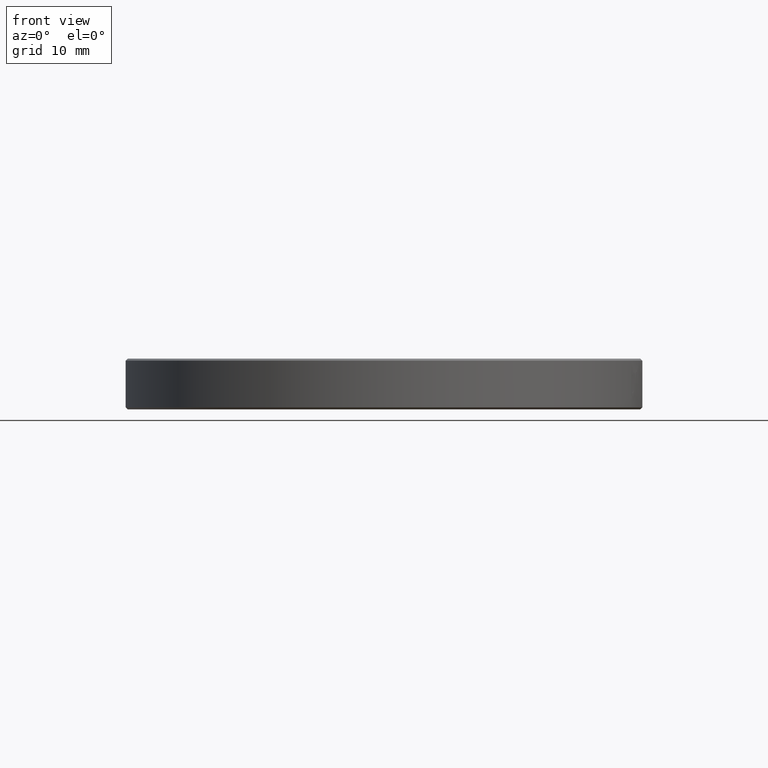
[diagram: clean part render]
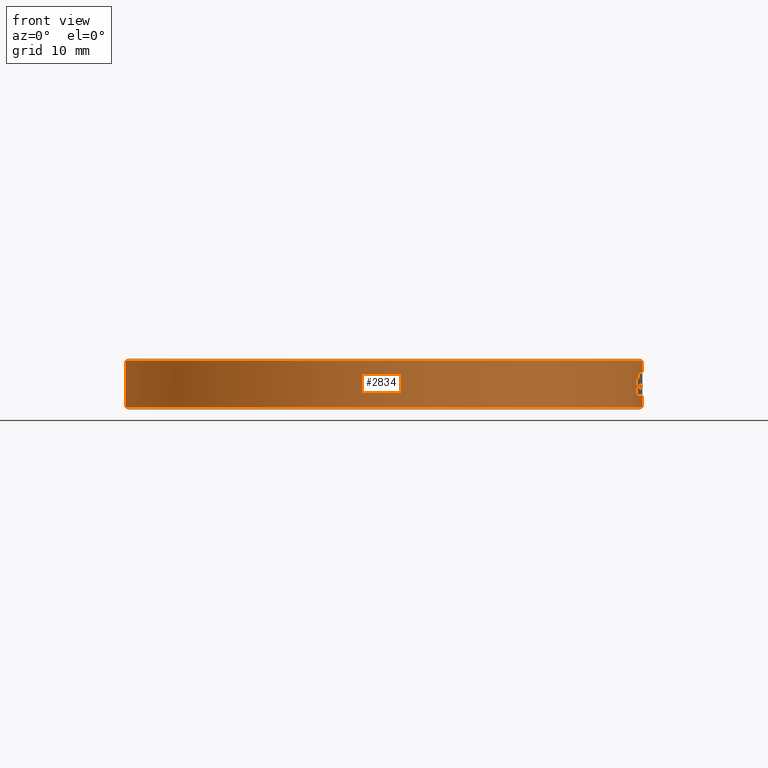
[diagram: same view with one face highlighted and labeled with its STEP entity id]
A machine part, front view. The second image highlights one B-rep face of the part: STEP entity #2834.
In plain terms, the highlighted cylindrical surface (partial cylindrical patch) has radius 25.4 mm, axis along (-0, -0, -1).
Its self-contained STEP definition (entity closure, byte-faithful):
#7 = CARTESIAN_POINT ( 'NONE',  ( 25.30086547611730600, -2.241920260468176700, 0.5619399777381648400 ) ) ;
#12 = B_SPLINE_CURVE_WITH_KNOTS ( 'NONE', 3,
 ( #944, #1166, #1380, #39, #1612, #273, #1829, #498, #2058, #722, #2286, #952, #2510, #1175, #2737, #1392, #50, #1619, #283, #1836, #508, #2068, #733 ),
 .UNSPECIFIED., .F., .F.,
 ( 4, 2, 2, 2, 2, 2, 2, 2, 1, 2, 2, 4 ),
 ( 0.0000000000000000000, 0.1249999999999920300, 0.1874999999999902000, 0.2187499999999884500, 0.2499999999999866800, 0.4999999999999912300, 0.6249999999999934500, 0.7499999999999956700, 0.8124999999999973400, 0.8437499999999977800, 0.8749999999999982200, 1.000000000000000000 ),
 .UNSPECIFIED. ) ;
#17 = CARTESIAN_POINT ( 'NONE',  ( 25.26875481580173100, -2.578786278960259400, 0.9237659435672553900 ) ) ;
#19 = ORIENTED_EDGE ( 'NONE', *, *, #239, .T. ) ;
#27 = EDGE_CURVE ( 'NONE', #2443, #2276, #747, .T. ) ;
#28 = VERTEX_POINT ( 'NONE', #132 ) ;
#34 = ORIENTED_EDGE ( 'NONE', *, *, #1295, .F. ) ;
#39 = CARTESIAN_POINT ( 'NONE',  ( 25.24589975265757500, -2.793686995092501400, 0.9282926497421984900 ) ) ;
#40 = EDGE_CURVE ( 'NONE', #1593, #1631, #2653, .T. ) ;
#41 = CARTESIAN_POINT ( 'NONE',  ( 25.29674471865617800, -2.287948128594824700, 0.04318181818181460900 ) ) ;
#42 = B_SPLINE_CURVE_WITH_KNOTS ( 'NONE', 3,
 ( #2501, #2475, #1183, #2748, #1402, #60, #1633, #293, #1846, #518, #2081, #742, #2305, #975, #2531, #1194, #2759, #1413, #70, #1643, #305, #1859, #528, #2091, #754, #2315 ),
 .UNSPECIFIED., .F., .F.,
 ( 4, 1, 2, 2, 2, 2, 2, 1, 2, 2, 1, 1, 2, 2, 4 ),
 ( 0.0000000000000000000, 0.03124999999999968100, 0.04687499999999952100, 0.06249999999999936200, 0.1249999999999988900, 0.2499999999999982200, 0.4999999999999968900, 0.6249999999999960000, 0.6874999999999962300, 0.7499999999999963400, 0.8124999999999964500, 0.8437499999999971100, 0.8593749999999974500, 0.8749999999999976700, 1.000000000000000000 ),
 .UNSPECIFIED. ) ;
#45 = CARTESIAN_POINT ( 'NONE',  ( 25.20449400554797800, -3.145418362480113300, -0.6305391112946457900 ) ) ;
#49 = CARTESIAN_POINT ( 'NONE',  ( 25.39907132724989900, -0.2173153271286558100, 0.8890310381802903900 ) ) ;
#50 = CARTESIAN_POINT ( 'NONE',  ( 25.20742467147210100, -3.121821514030187500, 0.6874203081448092600 ) ) ;
#53 = CARTESIAN_POINT ( 'NONE',  ( 25.24950276458418900, -2.760911212238236000, -0.9174638372989089000 ) ) ;
#54 = CARTESIAN_POINT ( 'NONE',  ( 25.30321597698507600, -2.215242193784452400, 0.006024378144296492700 ) ) ;
#60 = CARTESIAN_POINT ( 'NONE',  ( 25.17393517866151200, -3.381270141634888000, 0.6255688319169356900 ) ) ;
#63 = CARTESIAN_POINT ( 'NONE',  ( 24.51717826067070000, -6.638403320867815300, 1.166101111661969100 ) ) ;
#65 = CARTESIAN_POINT ( 'NONE',  ( 25.32658935903784300, -1.929734636269117500, -0.4488851381567774400 ) ) ;
#70 = CARTESIAN_POINT ( 'NONE',  ( 25.23212874263250100, -2.915560678556281100, 1.185413387588545300 ) ) ;
#74 = B_SPLINE_CURVE_WITH_KNOTS ( 'NONE', 3,
 ( #1747, #177, #1296, #2873 ),
 .UNSPECIFIED., .F., .F.,
 ( 4, 4 ),
 ( 0.0000000000000000000, 1.000000000000000000 ),
 .UNSPECIFIED. ) ;
#75 = CARTESIAN_POINT ( 'NONE',  ( 25.32681407813441200, -1.926781941894931500, -0.5180905032467568700 ) ) ;
#80 = DIRECTION ( 'NONE',  ( -0.0000000000000000000, -0.0000000000000000000, -1.000000000000000000 ) ) ;
#81 = CIRCLE ( 'NONE', #393, 25.39999999999999900 ) ;
#82 = CARTESIAN_POINT ( 'NONE',  ( 24.56986509594505500, -6.440633277704656700, 1.111768220604015400 ) ) ;
#87 = CARTESIAN_POINT ( 'NONE',  ( 25.29246192835334700, -2.336665755806266000, 1.134315652282084800 ) ) ;
#92 = CARTESIAN_POINT ( 'NONE',  ( 24.65906314291914100, -6.090208604173748900, 0.7221508832064225100 ) ) ;
#95 = CARTESIAN_POINT ( 'NONE',  ( 25.32121345325638000, -1.999121893825771100, -0.8379485931346978300 ) ) ;
#101 = CARTESIAN_POINT ( 'NONE',  ( 25.32149373646664300, -1.995492108857191300, 0.6146811817459445500 ) ) ;
#102 = ORIENTED_EDGE ( 'NONE', *, *, #764, .T. ) ;
#103 = CARTESIAN_POINT ( 'NONE',  ( 25.22394477653611500, -2.985400801911628900, -0.004889811921511812200 ) ) ;
#108 = CARTESIAN_POINT ( 'NONE',  ( 24.68901633927567100, -5.967618642012182000, 0.1889688978839524600 ) ) ;
#110 = VERTEX_POINT ( 'NONE', #1471 ) ;
#112 = CARTESIAN_POINT ( 'NONE',  ( 25.27556367058927100, -2.511158429688246300, -1.192001124255152500 ) ) ;
#116 = CARTESIAN_POINT ( 'NONE',  ( 25.17863811784803800, -3.346077425194918600, 0.3400364611785319200 ) ) ;
#118 = CARTESIAN_POINT ( 'NONE',  ( 25.25671054044408900, -2.694173839272523200, 0.1643060064935026900 ) ) ;
#121 = CARTESIAN_POINT ( 'NONE',  ( 25.39939276716075900, -0.1757862055398571300, 0.1837596636368503400 ) ) ;
#126 = LINE ( 'NONE', #1757, #1828 ) ;
#131 = CARTESIAN_POINT ( 'NONE',  ( 25.39407095137594400, -0.5488191224369025600, -0.1873808549491230400 ) ) ;
#132 = CARTESIAN_POINT ( 'NONE',  ( 25.11771834358241100, -3.776271337240444400, 1.178124999999996500 ) ) ;
#135 = ORIENTED_EDGE ( 'NONE', *, *, #485, .T. ) ;
#136 = CARTESIAN_POINT ( 'NONE',  ( 25.25374084571112800, -2.721874915522037400, -1.200678243020851400 ) ) ;
#140 = CARTESIAN_POINT ( 'NONE',  ( 24.66163670107728100, -6.079796141413409000, -0.6729456370343892500 ) ) ;
#142 = ORIENTED_EDGE ( 'NONE', *, *, #871, .F. ) ;
#147 = B_SPLINE_CURVE_WITH_KNOTS ( 'NONE', 3,
 ( #569, #2351, #793, #2580 ),
 .UNSPECIFIED., .F., .F.,
 ( 4, 4 ),
 ( 0.0000000000000000000, 1.000000000000000000 ),
 .UNSPECIFIED. ) ;
#149 = CARTESIAN_POINT ( 'NONE',  ( 25.17962766709567300, -3.338642595920160900, -0.8388322571031743300 ) ) ;
#150 = CARTESIAN_POINT ( 'NONE',  ( 25.19737612809724000, -3.201911344680761700, -0.3783685064935103400 ) ) ;
#154 = DIRECTION ( 'NONE',  ( 0.9874117844352001700, -0.1581706924764940100, 0.0000000000000000000 ) ) ;
#155 = CARTESIAN_POINT ( 'NONE',  ( 24.53097159795009200, -6.587317848010207500, -1.147936477108719300 ) ) ;
#160 = CARTESIAN_POINT ( 'NONE',  ( 24.96249369507591700, -4.694029028808310000, -0.8337763798701336400 ) ) ;
#161 = CARTESIAN_POINT ( 'NONE',  ( 25.29554039580925800, -2.301260488758626500, -0.2479172592259155400 ) ) ;
#162 = CARTESIAN_POINT ( 'NONE',  ( 25.22805690645898100, -2.950522871456672500, 0.2455246004928148300 ) ) ;
#165 = CARTESIAN_POINT ( 'NONE',  ( 24.96824627350353500, -4.663339046918718400, -0.7196960869471057400 ) ) ;
#168 = CARTESIAN_POINT ( 'NONE',  ( 25.27052691325914000, -2.561343070084406600, -0.9235106456189430300 ) ) ;
#171 = CARTESIAN_POINT ( 'NONE',  ( 25.38513482972422300, -0.8688668924076263800, 1.178124999999997000 ) ) ;
#174 = CARTESIAN_POINT ( 'NONE',  ( 25.20934490728099000, -3.106273375934130300, 0.3820868269579403800 ) ) ;
#177 = CARTESIAN_POINT ( 'NONE',  ( 24.90327446135940900, -5.002168185004169500, -0.4882068452380990400 ) ) ;
#180 = ORIENTED_EDGE ( 'NONE', *, *, #424, .T. ) ;
#182 = CARTESIAN_POINT ( 'NONE',  ( 25.30591117770281400, -2.184231136215609900, -0.6387636552595013000 ) ) ;
#184 = CARTESIAN_POINT ( 'NONE',  ( 25.39522907248436200, -0.4922807695259071000, 1.132822646103893000 ) ) ;
#190 = ORIENTED_EDGE ( 'NONE', *, *, #2749, .F. ) ;
#194 = CARTESIAN_POINT ( 'NONE',  ( 0.0000000000000000000, 0.0000000000000000000, 2.500000000000000000 ) ) ;
#217 = ORIENTED_EDGE ( 'NONE', *, *, #40, .T. ) ;
#220 = VECTOR ( 'NONE', #755, 1000.000000000000000 ) ;
#225 = CYLINDRICAL_SURFACE ( 'NONE', #921, 25.39999999999999900 ) ;
#229 = B_SPLINE_CURVE_WITH_KNOTS ( 'NONE', 3,
 ( #118, #2808, #1024, #41 ),
 .UNSPECIFIED., .F., .F.,
 ( 4, 4 ),
 ( 0.0000000000000000000, 1.000000000000000000 ),
 .UNSPECIFIED. ) ;
#235 = CARTESIAN_POINT ( 'NONE',  ( 25.30020763745782000, -2.249340737528018800, 0.6005824919746901600 ) ) ;
#239 = EDGE_CURVE ( 'NONE', #1468, #110, #2704, .T. ) ;
#242 = CARTESIAN_POINT ( 'NONE',  ( 25.19772279271417800, -3.199183274536681900, -0.4024391899495166600 ) ) ;
#243 = ORIENTED_EDGE ( 'NONE', *, *, #2710, .T. ) ;
#245 = CARTESIAN_POINT ( 'NONE',  ( 25.26672129021445600, -2.598617198078900300, 0.9269314122680308900 ) ) ;
#249 = VERTEX_POINT ( 'NONE', #1823 ) ;
#252 = EDGE_LOOP ( 'NONE', ( #1399, #180, #2734, #1589 ) ) ;
#253 = DIRECTION ( 'NONE',  ( 0.0000000000000000000, 0.0000000000000000000, -1.000000000000000000 ) ) ;
#266 = B_SPLINE_CURVE_WITH_KNOTS ( 'NONE', 3,
 ( #2069, #2532, #2761, #1415 ),
 .UNSPECIFIED., .F., .F.,
 ( 4, 4 ),
 ( 0.0000000000000000000, 1.000000000000000000 ),
 .UNSPECIFIED. ) ;
#269 = VECTOR ( 'NONE', #1847, 1000.000000000000000 ) ;
#273 = CARTESIAN_POINT ( 'NONE',  ( 25.24185632727976600, -2.829971213125185500, 0.9224669088380544900 ) ) ;
#278 = CARTESIAN_POINT ( 'NONE',  ( 25.21107877479098700, -3.092229576373078300, -0.7225204737798459600 ) ) ;
#283 = CARTESIAN_POINT ( 'NONE',  ( 25.20630139711946100, -3.130874129605270500, 0.6544308687159156000 ) ) ;
#286 = CARTESIAN_POINT ( 'NONE',  ( 25.25331199596646700, -2.725969590429779400, -0.9233162473027153300 ) ) ;
#287 = CARTESIAN_POINT ( 'NONE',  ( 25.30794472811351500, -2.160675923229277400, -0.02873876725655944200 ) ) ;
#293 = CARTESIAN_POINT ( 'NONE',  ( 25.17456601702967200, -3.376572250871992000, 0.6743403926374059700 ) ) ;
#294 = EDGE_CURVE ( 'NONE', #1681, #2700, #2633, .T. ) ;
#295 = CARTESIAN_POINT ( 'NONE',  ( 24.52749224746182200, -6.600165725681560700, 1.160297489971024300 ) ) ;
#296 = FACE_BOUND ( 'NONE', #1487, .T. ) ;
#298 = CARTESIAN_POINT ( 'NONE',  ( 25.32681407813441200, -1.926781941894931500, -0.5180905032467568700 ) ) ;
#301 = VERTEX_POINT ( 'NONE', #2333 ) ;
#305 = CARTESIAN_POINT ( 'NONE',  ( 25.23842306041487000, -2.860425575421622100, 1.196141444895267000 ) ) ;
#309 = CARTESIAN_POINT ( 'NONE',  ( 0.0000000000000000000, 0.0000000000000000000, -1.171875000000003100 ) ) ;
#318 = CARTESIAN_POINT ( 'NONE',  ( 24.57326719066884400, -6.427641529234532100, 1.105854728723613300 ) ) ;
#327 = CARTESIAN_POINT ( 'NONE',  ( 25.30830440600245300, -2.156579456636301000, 0.9880379838107590200 ) ) ;
#332 = CARTESIAN_POINT ( 'NONE',  ( 24.66348421913350500, -6.072278879608501400, 0.6798077253000527300 ) ) ;
#334 = CARTESIAN_POINT ( 'NONE',  ( 25.31491023804208500, -2.077511375504141000, -0.9601324584718746700 ) ) ;
#337 = CARTESIAN_POINT ( 'NONE',  ( 25.32211068586675400, -1.987639407114030200, 0.5066964285714249400 ) ) ;
#338 = CARTESIAN_POINT ( 'NONE',  ( 25.21724958179007800, -3.041530810474312400, 0.01902945326283241700 ) ) ;
#345 = CARTESIAN_POINT ( 'NONE',  ( 24.68967877389576400, -5.964877840132832200, 0.1449468199120661200 ) ) ;
#347 = CARTESIAN_POINT ( 'NONE',  ( 25.27113181810181100, -2.555574425312123300, -1.197926122888978800 ) ) ;
#352 = CARTESIAN_POINT ( 'NONE',  ( 25.17627922858336100, -3.363777156722696800, 0.3981694814638355700 ) ) ;
#354 = DIRECTION ( 'NONE',  ( -0.0000000000000000000, -0.0000000000000000000, -1.000000000000000000 ) ) ;
#355 = CARTESIAN_POINT ( 'NONE',  ( 25.39918417700367200, -0.2036459731516270000, 0.1158812497865693600 ) ) ;
#356 = VERTEX_POINT ( 'NONE', #1004 ) ;
#358 = CARTESIAN_POINT ( 'NONE',  ( 24.96249369507591700, -4.694029028808310000, -0.8337763798701336400 ) ) ;
#365 = VERTEX_POINT ( 'NONE', #897 ) ;
#366 = CARTESIAN_POINT ( 'NONE',  ( 24.69003246753042900, -5.963413264811774400, -0.06693973445584952600 ) ) ;
#370 = CARTESIAN_POINT ( 'NONE',  ( 25.39329858409265800, -0.5838345318005104800, -0.1974068279008771900 ) ) ;
#374 = CARTESIAN_POINT ( 'NONE',  ( 25.25226535110819300, -2.735532158270809000, -1.200034199437138800 ) ) ;
#377 = CARTESIAN_POINT ( 'NONE',  ( 24.64607899703022700, -6.142615500200487400, -0.8059168081951624300 ) ) ;
#383 = CARTESIAN_POINT ( 'NONE',  ( 25.30697640244377000, -2.171852996331654400, -0.4878685090521249800 ) ) ;
#384 = CARTESIAN_POINT ( 'NONE',  ( 25.17501142960748300, -3.373266416187676000, -0.7680090990722576700 ) ) ;
#385 = CARTESIAN_POINT ( 'NONE',  ( 25.21437798228407700, -3.065149746180095400, 0.3207183441558407700 ) ) ;
#389 = CARTESIAN_POINT ( 'NONE',  ( 24.50305258334528700, -6.690418937885918500, -1.165157853389921200 ) ) ;
#393 = AXIS2_PLACEMENT_3D ( 'NONE', #1759, #425, #1983 ) ;
#395 = CARTESIAN_POINT ( 'NONE',  ( -25.39999999999999900, 0.0000000000000000000, 2.300000000000018500 ) ) ;
#396 = VERTEX_POINT ( 'NONE', #1565 ) ;
#397 = CARTESIAN_POINT ( 'NONE',  ( 25.29136307582148600, -2.346710689219916100, -0.2183953170801222200 ) ) ;
#398 = CARTESIAN_POINT ( 'NONE',  ( 25.23296383509021700, -2.908188012063817100, 0.2284054044787893200 ) ) ;
#401 = CARTESIAN_POINT ( 'NONE',  ( 24.97092373759053500, -4.648975171798857900, -0.6677237023091734400 ) ) ;
#405 = CARTESIAN_POINT ( 'NONE',  ( 25.27270034088910200, -2.539857022555682700, -0.9211094817049604300 ) ) ;
#409 = CARTESIAN_POINT ( 'NONE',  ( 25.38640994818041800, -0.8316125624094187200, 1.178159978662840700 ) ) ;
#410 = CARTESIAN_POINT ( 'NONE',  ( 25.21077972686713800, -3.094613764129274400, 0.3605929100569755800 ) ) ;
#415 = CARTESIAN_POINT ( 'NONE',  ( 25.30629678811090200, -2.179757701125098400, -0.6201697316193494100 ) ) ;
#421 = LINE ( 'NONE', #799, #2126 ) ;
#423 = ORIENTED_EDGE ( 'NONE', *, *, #1888, .T. ) ;
#424 = EDGE_CURVE ( 'NONE', #1903, #1172, #2048, .T. ) ;
#425 = DIRECTION ( 'NONE',  ( -0.0000000000000000000, -0.0000000000000000000, 1.000000000000000000 ) ) ;
#432 = ORIENTED_EDGE ( 'NONE', *, *, #1912, .T. ) ;
#438 = ORIENTED_EDGE ( 'NONE', *, *, #2092, .T. ) ;
#465 = CARTESIAN_POINT ( 'NONE',  ( 25.29691464357497200, -2.286154864270689500, 0.7145000732622091000 ) ) ;
#467 = EDGE_CURVE ( 'NONE', #2240, #249, #12, .T. ) ;
#469 = LINE ( 'NONE', #519, #269 ) ;
#475 = CARTESIAN_POINT ( 'NONE',  ( 25.26346667127567300, -2.630172489521678700, 0.9311643263984038500 ) ) ;
#483 = CIRCLE ( 'NONE', #1324, 25.40000000000000200 ) ;
#485 = EDGE_CURVE ( 'NONE', #2159, #301, #42, .T. ) ;
#493 = CARTESIAN_POINT ( 'NONE',  ( 25.19822292477906700, -3.195242188443004700, -0.4340969033165203400 ) ) ;
#498 = CARTESIAN_POINT ( 'NONE',  ( 25.23970598802962300, -2.849084316447647100, 0.9186005700029824500 ) ) ;
#502 = CARTESIAN_POINT ( 'NONE',  ( 25.22024415522074000, -3.016611828916366400, -0.8015029157939727000 ) ) ;
#508 = CARTESIAN_POINT ( 'NONE',  ( 25.20543774944977100, -3.137821676526913400, 0.6203653447884794900 ) ) ;
#509 = CARTESIAN_POINT ( 'NONE',  ( 25.39760423533341400, -0.3496018210977082700, 1.052813804981135100 ) ) ;
#510 = CARTESIAN_POINT ( 'NONE',  ( 24.98485168859734900, -4.573531031795260700, -1.171875000000003600 ) ) ;
#512 = CARTESIAN_POINT ( 'NONE',  ( 25.26212138708644200, -2.642957249769613000, -0.9277191558441596500 ) ) ;
#513 = CARTESIAN_POINT ( 'NONE',  ( 25.31721562862810500, -2.049289153178023500, -0.1301443488081564500 ) ) ;
#518 = CARTESIAN_POINT ( 'NONE',  ( 25.17760116769755300, -3.353904291144942400, 0.7817771666021113800 ) ) ;
#519 = CARTESIAN_POINT ( 'NONE',  ( 25.36419806497637500, -1.348130750576007400, -0.2257711038961070500 ) ) ;
#521 = CARTESIAN_POINT ( 'NONE',  ( 24.53811968363073200, -6.560586592610031100, 1.153420622424218900 ) ) ;
#528 = CARTESIAN_POINT ( 'NONE',  ( 25.24054775029213000, -2.841613517850526200, 1.199124563778529300 ) ) ;
#534 = DIRECTION ( 'NONE',  ( 0.9980341591562811300, -0.06267229976005989100, 0.0000000000000000000 ) ) ;
#536 = B_SPLINE_CURVE_WITH_KNOTS ( 'NONE', 3,
 ( #2177, #1071, #1283, #2859, #1509, #168, #1740, #405, #1964, #623, #2191, #851, #2407, #1085, #2644, #1291, #2868, #1521, #182, #1750, #415, #1973, #638, #2199, #865 ),
 .UNSPECIFIED., .F., .F.,
 ( 4, 1, 1, 2, 2, 1, 2, 2, 2, 2, 1, 1, 2, 2, 4 ),
 ( 0.0000000000000000000, 0.06250000000000749400, 0.09375000000001032500, 0.1093750000000106900, 0.1250000000000110500, 0.1875000000000109400, 0.2187500000000108800, 0.2500000000000108200, 0.5000000000000073300, 0.7500000000000038900, 0.8125000000000031100, 0.8437500000000027800, 0.8593750000000025500, 0.8750000000000023300, 1.000000000000000000 ),
 .UNSPECIFIED. ) ;
#537 = CARTESIAN_POINT ( 'NONE',  ( 25.26285670775666500, -2.636092762903202500, 1.206028282804843900 ) ) ;
#542 = EDGE_CURVE ( 'NONE', #1284, #2054, #147, .T. ) ;
#545 = CARTESIAN_POINT ( 'NONE',  ( 24.58729560277052400, -6.373804299213466300, 1.076347117475268300 ) ) ;
#548 = CARTESIAN_POINT ( 'NONE',  ( 25.32664480513273400, -1.929006181068882300, -0.5741322314342470800 ) ) ;
#550 = LINE ( 'NONE', #1646, #220 ) ;
#554 = CARTESIAN_POINT ( 'NONE',  ( 25.31486840235464400, -2.077871968679851900, 0.8725253873259365400 ) ) ;
#555 = CARTESIAN_POINT ( 'NONE',  ( 25.25021494231939600, -2.754386568125511700, -0.08080357142857498600 ) ) ;
#559 = CARTESIAN_POINT ( 'NONE',  ( 24.67548688091940800, -6.023344012464252600, 0.5409019199198241700 ) ) ;
#561 = CARTESIAN_POINT ( 'NONE',  ( 25.30665966345409100, -2.175816960552236600, -1.056809253984207300 ) ) ;
#562 = DIRECTION ( 'NONE',  ( 0.0000000000000000000, 0.0000000000000000000, 1.000000000000000000 ) ) ;
#564 = EDGE_CURVE ( 'NONE', #1128, #2200, #229, .T. ) ;
#566 = CARTESIAN_POINT ( 'NONE',  ( 25.21203481717142800, -3.084375104650759700, 0.04060546501874980800 ) ) ;
#568 = ORIENTED_EDGE ( 'NONE', *, *, #2502, .T. ) ;
#569 = CARTESIAN_POINT ( 'NONE',  ( 24.98192719601322100, -4.589478573116445600, -0.4570515422077959800 ) ) ;
#571 = CARTESIAN_POINT ( 'NONE',  ( 24.69035149041815200, -5.962092189794281800, 0.01600040584415251100 ) ) ;
#573 = CARTESIAN_POINT ( 'NONE',  ( 25.39966771772728300, -0.1299382632457798100, 0.4265307102111172700 ) ) ;
#574 = CARTESIAN_POINT ( 'NONE',  ( 25.25992950399524500, -2.663824591295468600, -1.202394480519484400 ) ) ;
#578 = CARTESIAN_POINT ( 'NONE',  ( 25.17479648552403400, -3.374851971381715100, 0.4520948208302049700 ) ) ;
#581 = CARTESIAN_POINT ( 'NONE',  ( 25.39905353359257500, -0.2193665264646398900, 0.08425657877257297600 ) ) ;
#588 = CARTESIAN_POINT ( 'NONE',  ( 24.68966885847946500, -5.964918427994679600, -0.1074520438860240200 ) ) ;
#590 = AXIS2_PLACEMENT_3D ( 'NONE', #690, #2252, #916 ) ;
#592 = LINE ( 'NONE', #1079, #1558 ) ;
#593 = CARTESIAN_POINT ( 'NONE',  ( 25.39139788925427500, -0.6612043872438032600, -0.2125511227621788800 ) ) ;
#594 = CARTESIAN_POINT ( 'NONE',  ( 25.30712322163729400, -2.170141526460093000, -0.5252435064935102600 ) ) ;
#595 = CARTESIAN_POINT ( 'NONE',  ( 25.24600472555672000, -2.792842579208305100, -1.195198968423516300 ) ) ;
#597 = CARTESIAN_POINT ( 'NONE',  ( 24.62741386720583100, -6.216982627366474100, -0.9164385127576451000 ) ) ;
#603 = VERTEX_POINT ( 'NONE', #2059 ) ;
#604 = CARTESIAN_POINT ( 'NONE',  ( 25.30691901785965200, -2.172521581481724700, -0.4791137399776324000 ) ) ;
#605 = VERTEX_POINT ( 'NONE', #723 ) ;
#606 = CARTESIAN_POINT ( 'NONE',  ( 25.17132785762238000, -3.400636245286513300, -0.6932380130760954500 ) ) ;
#607 = CARTESIAN_POINT ( 'NONE',  ( 25.21524619130181600, -3.058007729589165400, 0.3135438997322395100 ) ) ;
#609 = CARTESIAN_POINT ( 'NONE',  ( 0.0000000000000000000, 0.0000000000000000000, 1.178124999999996500 ) ) ;
#610 = CARTESIAN_POINT ( 'NONE',  ( 25.39561089192947900, -0.4725838955604636500, 1.125197500448224400 ) ) ;
#611 = CARTESIAN_POINT ( 'NONE',  ( 24.48567634852853600, -6.753660694043959200, -1.169804815686531300 ) ) ;
#615 = CARTESIAN_POINT ( 'NONE',  ( 25.28960972447424300, -2.365513568922338500, -0.2086746832888351200 ) ) ;
#616 = CARTESIAN_POINT ( 'NONE',  ( 25.20516076624360800, -3.140043224297290000, 0.5265162593776506700 ) ) ;
#617 = CARTESIAN_POINT ( 'NONE',  ( 25.23477623458400700, -2.892417213162814100, 0.2224446371577583300 ) ) ;
#620 = CARTESIAN_POINT ( 'NONE',  ( 24.97188309411983600, -4.643819118476786300, -0.6491353668232923100 ) ) ;
#623 = CARTESIAN_POINT ( 'NONE',  ( 25.27703580132700600, -2.496298700687785000, -0.9136275627024328400 ) ) ;
#627 = CARTESIAN_POINT ( 'NONE',  ( 25.38960615510687900, -0.7268152357772920100, 1.174332025561626300 ) ) ;
#629 = CARTESIAN_POINT ( 'NONE',  ( 25.21437798228407700, -3.065149746180095400, 0.3207183441558407700 ) ) ;
#638 = CARTESIAN_POINT ( 'NONE',  ( 25.30681630808900100, -2.173722149584421900, -0.5911197650262197700 ) ) ;
#640 = ORIENTED_EDGE ( 'NONE', *, *, #2403, .T. ) ;
#644 = B_SPLINE_CURVE_WITH_KNOTS ( 'NONE', 3,
 ( #963, #735, #2072, #1186, #2752, #1405, #63, #1635, #295, #1849, #521, #2084, #745 ),
 .UNSPECIFIED., .F., .F.,
 ( 4, 2, 2, 1, 2, 2, 4 ),
 ( 0.0000000000000000000, 0.2500000000000012800, 0.5000000000000025500, 0.6250000000000031100, 0.6875000000000068800, 0.7500000000000106600, 1.000000000000000000 ),
 .UNSPECIFIED. ) ;
#661 = CIRCLE ( 'NONE', #2471, 25.39999999999999900 ) ;
#663 = EDGE_CURVE ( 'NONE', #356, #2447, #2282, .T. ) ;
#665 = ORIENTED_EDGE ( 'NONE', *, *, #564, .T. ) ;
#687 = CARTESIAN_POINT ( 'NONE',  ( 25.28812526191931200, -2.381419925644367100, 0.8355269092239247000 ) ) ;
#690 = CARTESIAN_POINT ( 'NONE',  ( 0.0000000000000000000, 0.0000000000000000000, 2.300000000000018500 ) ) ;
#696 = CARTESIAN_POINT ( 'NONE',  ( 25.25625494917230200, -2.698441391323803000, 0.9339691558441520800 ) ) ;
#697 = CARTESIAN_POINT ( 'NONE',  ( 25.39957031120479800, -0.1477506927141068200, 0.6986847408643818100 ) ) ;
#703 = CARTESIAN_POINT ( 'NONE',  ( 25.39967755509619400, -0.1279847535555761200, 0.4971590909090876100 ) ) ;
#706 = ORIENTED_EDGE ( 'NONE', *, *, #2158, .T. ) ;
#717 = CARTESIAN_POINT ( 'NONE',  ( 25.19899979881465400, -3.189107947015990000, -0.4740708624543003600 ) ) ;
#722 = CARTESIAN_POINT ( 'NONE',  ( 25.23186284054321900, -2.918296863478015100, 0.9013121427601313900 ) ) ;
#723 = CARTESIAN_POINT ( 'NONE',  ( 24.94541116260644000, -4.783979716565485600, -0.4856635551948088600 ) ) ;
#727 = CARTESIAN_POINT ( 'NONE',  ( 25.23088925496825400, -2.926176778908258200, -0.8607672506246216700 ) ) ;
#730 = ORIENTED_EDGE ( 'NONE', *, *, #2464, .T. ) ;
#733 = CARTESIAN_POINT ( 'NONE',  ( 25.20499790518306700, -3.141350123707508800, 0.5591517857142821500 ) ) ;
#735 = CARTESIAN_POINT ( 'NONE',  ( 24.46633299067601900, -6.823470154325471900, 1.178135551947569600 ) ) ;
#736 = CARTESIAN_POINT ( 'NONE',  ( 25.32681407813441200, -1.926781941894931500, -0.5180905032467568700 ) ) ;
#737 = CARTESIAN_POINT ( 'NONE',  ( 25.32404519897483700, -1.962897070123653700, -0.2834560327444420300 ) ) ;
#742 = CARTESIAN_POINT ( 'NONE',  ( 25.19065820904108900, -3.255001869829237600, 0.9785032398215911500 ) ) ;
#743 = EDGE_CURVE ( 'NONE', #365, #605, #266, .T. ) ;
#745 = CARTESIAN_POINT ( 'NONE',  ( 24.55527323492627900, -6.496041591470380200, 1.134730113636359900 ) ) ;
#747 = CIRCLE ( 'NONE', #2278, 25.40000000000000200 ) ;
#749 = B_SPLINE_CURVE_WITH_KNOTS ( 'NONE', 3,
 ( #1684, #1908, #573, #2132, #796, #2354, #1028, #2583, #1242, #2810, #1466, #121, #1694, #355, #1920, #581, #2142, #806, #2363, #1037, #2592, #1251, #2822, #1475, #131, #1703, #370, #1931, #593, #2153, #819, #2373, #1049, #2605, #1264 ),
 .UNSPECIFIED., .F., .F.,
 ( 4, 1, 1, 2, 2, 2, 2, 1, 2, 2, 2, 2, 1, 1, 2, 2, 1, 1, 2, 2, 4 ),
 ( 0.0000000000000000000, 0.06250000000000020800, 0.09375000000000038900, 0.1093750000000004700, 0.1250000000000005600, 0.1875000000000009700, 0.2500000000000013300, 0.3125000000000017200, 0.3437500000000018900, 0.3750000000000020500, 0.5000000000000027800, 0.6250000000000035500, 0.6875000000000038900, 0.7187500000000038900, 0.7343750000000037700, 0.7500000000000037700, 0.8125000000000025500, 0.8437500000000020000, 0.8593750000000016700, 0.8750000000000012200, 1.000000000000000000 ),
 .UNSPECIFIED. ) ;
#754 = CARTESIAN_POINT ( 'NONE',  ( 25.24966775380730500, -2.759921137711741000, 1.207579137037359000 ) ) ;
#755 = DIRECTION ( 'NONE',  ( 0.0000000000000000000, 0.0000000000000000000, 1.000000000000000000 ) ) ;
#761 = CARTESIAN_POINT ( 'NONE',  ( 24.77374735843659800, -5.605483192406850000, -1.171875000000003600 ) ) ;
#764 = EDGE_CURVE ( 'NONE', #2674, #987, #469, .T. ) ;
#765 = CARTESIAN_POINT ( 'NONE',  ( 25.26824661550961800, -2.583744208241149900, 1.201095004603356200 ) ) ;
#770 = CARTESIAN_POINT ( 'NONE',  ( 24.60628986171494100, -6.300098083892075700, 1.020831722240586500 ) ) ;
#771 = AXIS2_PLACEMENT_3D ( 'NONE', #2454, #1124, #2683 ) ;
#776 = ORIENTED_EDGE ( 'NONE', *, *, #467, .T. ) ;
#778 = CARTESIAN_POINT ( 'NONE',  ( 25.31743256222025100, -2.046380983029870500, 0.8058632785973296500 ) ) ;
#780 = CARTESIAN_POINT ( 'NONE',  ( 25.23979267536428500, -2.848579323411121400, -0.05316905555563089500 ) ) ;
#784 = EDGE_LOOP ( 'NONE', ( #102, #1365, #243, #142, #432, #217, #1109, #706 ) ) ;
#785 = CARTESIAN_POINT ( 'NONE',  ( 24.68275384202437200, -5.993471081115960600, 0.4040022827774212800 ) ) ;
#787 = CARTESIAN_POINT ( 'NONE',  ( 25.29606310557655400, -2.295577010401397300, -1.129088307171819800 ) ) ;
#791 = CARTESIAN_POINT ( 'NONE',  ( 25.20592515078323700, -3.134096025668337700, 0.06886996503397996300 ) ) ;
#793 = CARTESIAN_POINT ( 'NONE',  ( 25.03812037102652300, -4.275277501749907400, 0.6330661525973987300 ) ) ;
#794 = EDGE_CURVE ( 'NONE', #2276, #2651, #550, .T. ) ;
#796 = CARTESIAN_POINT ( 'NONE',  ( 25.39964276215268800, -0.1347141122304055200, 0.3704894130733105700 ) ) ;
#799 = CARTESIAN_POINT ( 'NONE',  ( 25.39999999999999900, 3.110602869834276900E-015, 2.500000000000000000 ) ) ;
#803 = CARTESIAN_POINT ( 'NONE',  ( 25.17422148599819200, -3.379137886130030700, 0.4828683023376044200 ) ) ;
#805 = CARTESIAN_POINT ( 'NONE',  ( 24.46522238929478700, -6.827363579182607700, -1.171875000000004000 ) ) ;
#806 = CARTESIAN_POINT ( 'NONE',  ( 25.39847609655664600, -0.2799118262992048600, -0.01397007146896264700 ) ) ;
#812 = EDGE_CURVE ( 'NONE', #906, #1899, #483, .T. ) ;
#814 = CARTESIAN_POINT ( 'NONE',  ( 24.68911356080539900, -5.967216563060794100, -0.1518679115669338000 ) ) ;
#819 = CARTESIAN_POINT ( 'NONE',  ( 25.39054275407986000, -0.6930944330461291700, -0.2167496164121016900 ) ) ;
#820 = CARTESIAN_POINT ( 'NONE',  ( 25.23708520162815100, -2.872311679575173700, -1.181541287592091600 ) ) ;
#824 = CARTESIAN_POINT ( 'NONE',  ( 24.60293876064812200, -6.313307772236997900, -1.021491698173751800 ) ) ;
#830 = CARTESIAN_POINT ( 'NONE',  ( 25.30647552735764400, -2.177685882100918400, -0.4421228385075913800 ) ) ;
#832 = CARTESIAN_POINT ( 'NONE',  ( 25.16843448677994000, -3.421975689202558800, -0.6110760847102602000 ) ) ;
#833 = CARTESIAN_POINT ( 'NONE',  ( 25.21762158791300800, -3.038355382326022500, 0.2961603930289446500 ) ) ;
#834 = DIRECTION ( 'NONE',  ( 0.9867713786582114100, -0.1621180010392820300, 0.0000000000000000000 ) ) ;
#835 = CARTESIAN_POINT ( 'NONE',  ( 24.47144569856787700, -6.805062929217530900, -1.171494318327367200 ) ) ;
#843 = CARTESIAN_POINT ( 'NONE',  ( 25.28262765631736300, -2.439923787330390500, -0.1738869661749862500 ) ) ;
#845 = CARTESIAN_POINT ( 'NONE',  ( 25.20536968983731900, -3.138365644770809500, 0.5028667924949217200 ) ) ;
#846 = CARTESIAN_POINT ( 'NONE',  ( 25.24789365269904100, -2.776828335577805200, 0.1848149482295304600 ) ) ;
#848 = CARTESIAN_POINT ( 'NONE',  ( 24.97866630405637900, -4.607228599434683300, -0.5185864882156092600 ) ) ;
#851 = CARTESIAN_POINT ( 'NONE',  ( 25.27889737291799900, -2.477378552215497200, -0.9093496528306547200 ) ) ;
#854 = CARTESIAN_POINT ( 'NONE',  ( 25.39057485104740800, -0.6918959570435782000, 1.171555803464069600 ) ) ;
#860 = DIRECTION ( 'NONE',  ( -0.0000000000000000000, -0.0000000000000000000, -1.000000000000000000 ) ) ;
#863 = CARTESIAN_POINT ( 'NONE',  ( 0.0000000000000000000, 0.0000000000000000000, -0.2257711038961070500 ) ) ;
#865 = CARTESIAN_POINT ( 'NONE',  ( 25.30712322163729400, -2.170141526460093000, -0.5252435064935102600 ) ) ;
#871 = EDGE_CURVE ( 'NONE', #603, #396, #2167, .T. ) ;
#876 = VECTOR ( 'NONE', #1254, 1000.000000000000000 ) ;
#882 = VERTEX_POINT ( 'NONE', #1001 ) ;
#897 = CARTESIAN_POINT ( 'NONE',  ( 24.85523937059717500, -5.232310754371917800, 1.178124999999996500 ) ) ;
#898 = FACE_BOUND ( 'NONE', #2679, .T. ) ;
#905 = CARTESIAN_POINT ( 'NONE',  ( 25.30167555600403900, -2.232760031184517500, 0.4952323943165155000 ) ) ;
#906 = VERTEX_POINT ( 'NONE', #805 ) ;
#915 = CARTESIAN_POINT ( 'NONE',  ( 25.28082035487239300, -2.457708211736893100, 0.8845367516993705200 ) ) ;
#916 = DIRECTION ( 'NONE',  ( 1.000000000000000000, 0.0000000000000000000, 0.0000000000000000000 ) ) ;
#921 = AXIS2_PLACEMENT_3D ( 'NONE', #194, #2211, #1762 ) ;
#922 = CARTESIAN_POINT ( 'NONE',  ( 25.39589070096138100, -0.4570188750409083800, 1.118650853868915500 ) ) ;
#924 = ORIENTED_EDGE ( 'NONE', *, *, #542, .T. ) ;
#944 = CARTESIAN_POINT ( 'NONE',  ( 25.25625494917230200, -2.698441391323803000, 0.9339691558441520800 ) ) ;
#945 = ORIENTED_EDGE ( 'NONE', *, *, #794, .T. ) ;
#947 = CARTESIAN_POINT ( 'NONE',  ( 25.19918445446456400, -3.187648608009008700, -0.4824943203544410600 ) ) ;
#952 = CARTESIAN_POINT ( 'NONE',  ( 25.21878930909045700, -3.028713467830510100, 0.8305158874462111900 ) ) ;
#956 = CARTESIAN_POINT ( 'NONE',  ( 25.23684979125307100, -2.874318106088092200, -0.8847704845199098100 ) ) ;
#958 = CARTESIAN_POINT ( 'NONE',  ( 25.39967755509619400, -0.1279847535555761200, 0.4971590909090876100 ) ) ;
#963 = CARTESIAN_POINT ( 'NONE',  ( 24.45700128223258600, -6.856754938079199700, 1.178124999999996500 ) ) ;
#966 = CARTESIAN_POINT ( 'NONE',  ( 25.32586971426616500, -1.939158201162802400, -0.3783983620778484400 ) ) ;
#974 = CARTESIAN_POINT ( 'NONE',  ( 25.39899034719447400, -0.2266444528577119300, 0.9054367406913557100 ) ) ;
#975 = CARTESIAN_POINT ( 'NONE',  ( 25.20955637341867100, -3.104963412961905700, 1.108193372747881400 ) ) ;
#977 = AXIS2_PLACEMENT_3D ( 'NONE', #309, #1866, #534 ) ;
#978 = CARTESIAN_POINT ( 'NONE',  ( 25.25021494231939600, -2.754386568125511700, -0.08080357142857498600 ) ) ;
#987 = VERTEX_POINT ( 'NONE', #2396 ) ;
#996 = CARTESIAN_POINT ( 'NONE',  ( 25.26943734070884400, -2.572075584658514400, 1.199615505655712500 ) ) ;
#1000 = EDGE_CURVE ( 'NONE', #110, #2083, #536, .T. ) ;
#1001 = CARTESIAN_POINT ( 'NONE',  ( 24.93865025011444200, -4.819099885089194400, -1.171875000000003600 ) ) ;
#1002 = CARTESIAN_POINT ( 'NONE',  ( 24.61871097213378700, -6.251333395528241100, 0.9721048641932740200 ) ) ;
#1004 = CARTESIAN_POINT ( 'NONE',  ( 24.82648434569745500, -5.367091859921819400, -1.171875000000003600 ) ) ;
#1007 = CARTESIAN_POINT ( 'NONE',  ( 25.31960047564526700, -2.019379671550318300, 0.7288960598071287900 ) ) ;
#1009 = CARTESIAN_POINT ( 'NONE',  ( 25.22995815267234200, -2.934228539699512700, -0.02451131318935804300 ) ) ;
#1015 = CARTESIAN_POINT ( 'NONE',  ( 24.68593253527922500, -5.980363858711962500, 0.3198730944528206900 ) ) ;
#1017 = CARTESIAN_POINT ( 'NONE',  ( 25.28981412767546600, -2.363426938848044200, -1.156737867497117800 ) ) ;
#1022 = CARTESIAN_POINT ( 'NONE',  ( 25.19389364022854800, -3.229348600794576600, 0.1502738308533447800 ) ) ;
#1024 = CARTESIAN_POINT ( 'NONE',  ( 25.28962926499865900, -2.366620285748256300, 0.07739771673753782800 ) ) ;
#1025 = CARTESIAN_POINT ( 'NONE',  ( 25.39722750435321100, -0.3763707992459042800, 1.073132284256770100 ) ) ;
#1028 = CARTESIAN_POINT ( 'NONE',  ( 25.39963444607969500, -0.1362745292308203700, 0.3570114076825572900 ) ) ;
#1030 = CARTESIAN_POINT ( 'NONE',  ( 24.26989928881562300, -7.492128436615792500, 1.178124999999996500 ) ) ;
#1033 = CARTESIAN_POINT ( 'NONE',  ( 25.17400474956126300, -3.380752125570161600, 0.4995844327109633700 ) ) ;
#1037 = CARTESIAN_POINT ( 'NONE',  ( 25.39722982860427800, -0.3774576953332314200, -0.1084884997013122200 ) ) ;
#1043 = CARTESIAN_POINT ( 'NONE',  ( 24.68685392049740600, -5.976560959910341500, -0.2654981852378912000 ) ) ;
#1045 = VERTEX_POINT ( 'NONE', #2740 ) ;
#1046 = AXIS2_PLACEMENT_3D ( 'NONE', #1184, #2750, #1403 ) ;
#1049 = CARTESIAN_POINT ( 'NONE',  ( 25.38921827235588300, -0.7408092559689841700, -0.2219221341520004100 ) ) ;
#1050 = DIRECTION ( 'NONE',  ( -0.0000000000000000000, -0.0000000000000000000, -1.000000000000000000 ) ) ;
#1051 = CARTESIAN_POINT ( 'NONE',  ( 25.22860905827498400, -2.945830823037129100, -1.161772530870113200 ) ) ;
#1053 = VECTOR ( 'NONE', #253, 1000.000000000000000 ) ;
#1055 = CARTESIAN_POINT ( 'NONE',  ( 24.56909715585047500, -6.443579981019127900, -1.099036396641129400 ) ) ;
#1061 = CARTESIAN_POINT ( 'NONE',  ( 25.30414509195316700, -2.204663080208241900, -0.3605142002408288600 ) ) ;
#1062 = CARTESIAN_POINT ( 'NONE',  ( 25.16759313881575700, -3.428156510107579700, -0.5785488617337392100 ) ) ;
#1063 = CARTESIAN_POINT ( 'NONE',  ( 25.21986089234848200, -3.019712579318316600, 0.2829890971952323000 ) ) ;
#1065 = EDGE_CURVE ( 'NONE', #1501, #1868, #644, .T. ) ;
#1067 = CARTESIAN_POINT ( 'NONE',  ( 24.96249369507591700, -4.694029028808310000, -0.8337763798701336400 ) ) ;
#1070 = VERTEX_POINT ( 'NONE', #510 ) ;
#1071 = CARTESIAN_POINT ( 'NONE',  ( 25.26402163427541900, -2.624794157968775000, -0.9273464062278833400 ) ) ;
#1073 = VERTEX_POINT ( 'NONE', #978 ) ;
#1074 = CARTESIAN_POINT ( 'NONE',  ( 25.25021494231939600, -2.754386568125511700, -0.08080357142857498600 ) ) ;
#1075 = CARTESIAN_POINT ( 'NONE',  ( 25.20574751160708600, -3.135330557706996800, 0.4734864348816425500 ) ) ;
#1079 = CARTESIAN_POINT ( 'NONE',  ( 25.35006764256953800, -1.591876413905521000, -1.171875000000003100 ) ) ;
#1082 = B_SPLINE_CURVE_WITH_KNOTS ( 'NONE', 3,
 ( #1652, #1871, #537, #2102, #765, #2324, #996, #2550, #1213, #2779, #1436, #87, #1664, #327, #1884, #554, #2114, #778, #2336, #1007, #2566, #1227, #2794, #1449, #101, #1677, #337 ),
 .UNSPECIFIED., .F., .F.,
 ( 4, 1, 1, 2, 2, 2, 2, 2, 1, 2, 2, 1, 1, 2, 2, 4 ),
 ( 0.0000000000000000000, 0.06250000000000269200, 0.09375000000000392700, 0.1093750000000038400, 0.1250000000000037700, 0.1875000000000039100, 0.2500000000000040500, 0.5000000000000042200, 0.6250000000000034400, 0.6875000000000035500, 0.7500000000000035500, 0.8125000000000035500, 0.8437500000000034400, 0.8593750000000033300, 0.8750000000000032200, 1.000000000000000000 ),
 .UNSPECIFIED. ) ;
#1084 = CARTESIAN_POINT ( 'NONE',  ( 25.39961360013924400, -0.1402324504513327300, 0.6626030245610609000 ) ) ;
#1085 = CARTESIAN_POINT ( 'NONE',  ( 25.29044432001034800, -2.356974452249100100, -0.8654994468137200400 ) ) ;
#1088 = CARTESIAN_POINT ( 'NONE',  ( 25.39081249999090800, -0.6831259997457436200, 1.170742459583102200 ) ) ;
#1093 = DIRECTION ( 'NONE',  ( 0.9985904749990699400, -0.05307601380220501600, 0.0000000000000000000 ) ) ;
#1095 = CARTESIAN_POINT ( 'NONE',  ( 25.39964038722632700, -0.1351857850578231700, 0.6264232792153869900 ) ) ;
#1104 = CARTESIAN_POINT ( 'NONE',  ( 24.45700128223258600, -6.856754938079199700, 1.178124999999996500 ) ) ;
#1109 = ORIENTED_EDGE ( 'NONE', *, *, #1117, .T. ) ;
#1115 = VERTEX_POINT ( 'NONE', #1455 ) ;
#1116 = CARTESIAN_POINT ( 'NONE',  ( 25.32211068586675400, -1.987639407114030200, 0.5066964285714249400 ) ) ;
#1117 = EDGE_CURVE ( 'NONE', #1631, #1115, #749, .T. ) ;
#1124 = DIRECTION ( 'NONE',  ( -0.0000000000000000000, -0.0000000000000000000, -1.000000000000000000 ) ) ;
#1128 = VERTEX_POINT ( 'NONE', #1488 ) ;
#1133 = CARTESIAN_POINT ( 'NONE',  ( 25.30142259669927500, -2.235625597101013300, 0.5209770159217317300 ) ) ;
#1139 = CARTESIAN_POINT ( 'NONE',  ( 25.27633768096494600, -2.503385797509215300, 0.9038645354039281900 ) ) ;
#1141 = CARTESIAN_POINT ( 'NONE',  ( 25.39999999999999900, 3.110602869834276900E-015, -2.300000000000008300 ) ) ;
#1153 = VERTEX_POINT ( 'NONE', #160 ) ;
#1166 = CARTESIAN_POINT ( 'NONE',  ( 25.25283756039142300, -2.730426685719185900, 0.9336936386699189500 ) ) ;
#1168 = CARTESIAN_POINT ( 'NONE',  ( 25.20027547934854800, -3.179015292611655100, -0.5243173644256731200 ) ) ;
#1172 = VERTEX_POINT ( 'NONE', #395 ) ;
#1175 = CARTESIAN_POINT ( 'NONE',  ( 25.21209791188146100, -3.083901081513393800, 0.7666828278184745200 ) ) ;
#1177 = CARTESIAN_POINT ( 'NONE',  ( 25.24360275862414200, -2.814439572609254400, -0.9055889131424524900 ) ) ;
#1178 = CARTESIAN_POINT ( 'NONE',  ( 25.30041717858820500, -2.247036344111439800, 0.02307534941599235000 ) ) ;
#1183 = CARTESIAN_POINT ( 'NONE',  ( 25.17375933428630900, -3.382579093091123900, 0.5987398460585921000 ) ) ;
#1184 = CARTESIAN_POINT ( 'NONE',  ( 0.0000000000000000000, 0.0000000000000000000, -1.171875000000003600 ) ) ;
#1186 = CARTESIAN_POINT ( 'NONE',  ( 24.49191811275489500, -6.731042721051120600, 1.174809727814555900 ) ) ;
#1188 = CARTESIAN_POINT ( 'NONE',  ( 25.32630031818077000, -1.933523312875172300, -0.4147793183907140200 ) ) ;
#1193 = CARTESIAN_POINT ( 'NONE',  ( 25.39855411973233900, -0.2721917637297320800, 0.9743151486697403400 ) ) ;
#1194 = CARTESIAN_POINT ( 'NONE',  ( 25.22138484435211600, -3.007016903811726500, 1.156005342399140500 ) ) ;
#1205 = CARTESIAN_POINT ( 'NONE',  ( 24.55527323492627900, -6.496041591470380200, 1.134730113636359900 ) ) ;
#1213 = CARTESIAN_POINT ( 'NONE',  ( 25.27482387125624900, -2.518690925956323500, 1.190470400108452100 ) ) ;
#1219 = CARTESIAN_POINT ( 'NONE',  ( 24.63186381961160300, -6.199391458929267400, 0.9125230378043611700 ) ) ;
#1223 = CARTESIAN_POINT ( 'NONE',  ( 25.32618757811464100, -1.935004648795891200, -0.6354911416380799600 ) ) ;
#1227 = CARTESIAN_POINT ( 'NONE',  ( 25.32068052965624700, -2.005776380616969100, 0.6711429490415055100 ) ) ;
#1228 = CARTESIAN_POINT ( 'NONE',  ( 25.22510234477713500, -2.975606770445184500, -0.008822444438470824400 ) ) ;
#1233 = CARTESIAN_POINT ( 'NONE',  ( 24.68827309229982300, -5.970692928184871700, 0.2304933919551695200 ) ) ;
#1234 = CARTESIAN_POINT ( 'NONE',  ( 25.28245613439820300, -2.440972872759166600, -1.179336696818030100 ) ) ;
#1238 = CARTESIAN_POINT ( 'NONE',  ( 25.18440635156000000, -3.302389323221842400, 0.2487680439561686900 ) ) ;
#1241 = EDGE_CURVE ( 'NONE', #301, #2826, #1082, .T. ) ;
#1242 = CARTESIAN_POINT ( 'NONE',  ( 25.39958714926163500, -0.1449134129621126300, 0.3010005576058914500 ) ) ;
#1247 = CARTESIAN_POINT ( 'NONE',  ( 25.17372349207208200, -3.382845837098400000, 0.5372385731466259300 ) ) ;
#1251 = CARTESIAN_POINT ( 'NONE',  ( 25.39559888005675600, -0.4738791587353585700, -0.1609040596790445600 ) ) ;
#1253 = CARTESIAN_POINT ( 'NONE',  ( 25.39924731976156700, -0.1960523963568663300, 0.8484892747804592100 ) ) ;
#1254 = DIRECTION ( 'NONE',  ( 0.0000000000000000000, 0.0000000000000000000, 1.000000000000000000 ) ) ;
#1255 = CARTESIAN_POINT ( 'NONE',  ( 25.20505777806576500, -3.140869726482363500, 0.5450705969563265400 ) ) ;
#1260 = CARTESIAN_POINT ( 'NONE',  ( 24.67776193369356000, -6.014005914794828400, -0.4738715507046923300 ) ) ;
#1264 = CARTESIAN_POINT ( 'NONE',  ( 25.38568427808616300, -0.8526627312888552800, -0.2257711038961070500 ) ) ;
#1266 = CARTESIAN_POINT ( 'NONE',  ( 25.20291862406947900, -3.158823615175178300, -1.058791291055097400 ) ) ;
#1267 = CARTESIAN_POINT ( 'NONE',  ( 25.17646931408169300, -3.363334125704596100, -0.3987148268398303900 ) ) ;
#1268 = CARTESIAN_POINT ( 'NONE',  ( 25.35006764256953800, -1.591876413905521000, -1.171875000000003100 ) ) ;
#1269 = CARTESIAN_POINT ( 'NONE',  ( 24.55614803789408300, -6.492756496767983200, -1.119518866970487600 ) ) ;
#1275 = VERTEX_POINT ( 'NONE', #1268 ) ;
#1276 = CARTESIAN_POINT ( 'NONE',  ( 25.30100983031100600, -2.240318270157013000, -0.3067128695136008300 ) ) ;
#1277 = CARTESIAN_POINT ( 'NONE',  ( 25.16644081864763600, -3.436611181804948100, -0.5267381661679853000 ) ) ;
#1278 = CARTESIAN_POINT ( 'NONE',  ( 25.22244004217317600, -2.998094736762071400, 0.2697999918849015600 ) ) ;
#1280 = CARTESIAN_POINT ( 'NONE',  ( 24.96329125277351200, -4.689787676896056500, -0.8172208920536729900 ) ) ;
#1283 = CARTESIAN_POINT ( 'NONE',  ( 25.26655756970285100, -2.600273903865388800, -0.9264655346229917500 ) ) ;
#1284 = VERTEX_POINT ( 'NONE', #2841 ) ;
#1286 = CARTESIAN_POINT ( 'NONE',  ( 25.21437798228407700, -3.065149746180095400, 0.3207183441558407700 ) ) ;
#1287 = CARTESIAN_POINT ( 'NONE',  ( 25.20735948129933800, -3.122344962145101800, 0.4214243819773776900 ) ) ;
#1291 = CARTESIAN_POINT ( 'NONE',  ( 25.30212889839577500, -2.227734865256554300, -0.7458966757967240300 ) ) ;
#1293 = CARTESIAN_POINT ( 'NONE',  ( 25.39265277894101300, -0.6114978226478380300, 1.162450332594264100 ) ) ;
#1295 = EDGE_CURVE ( 'NONE', #28, #2054, #2409, .T. ) ;
#1296 = CARTESIAN_POINT ( 'NONE',  ( 24.86588280441231200, -5.184846941433824500, 0.1954613095238057500 ) ) ;
#1312 = ORIENTED_EDGE ( 'NONE', *, *, #1837, .T. ) ;
#1321 = CARTESIAN_POINT ( 'NONE',  ( 25.30898335750688600, -2.149880223050932000, 0.4863501082251047700 ) ) ;
#1324 = AXIS2_PLACEMENT_3D ( 'NONE', #1429, #80, #1656 ) ;
#1329 = DIRECTION ( 'NONE',  ( -0.0000000000000000000, -0.0000000000000000000, -1.000000000000000000 ) ) ;
#1338 = EDGE_CURVE ( 'NONE', #2700, #1045, #1351, .T. ) ;
#1339 = CARTESIAN_POINT ( 'NONE',  ( 24.98485168859734900, -4.573531031795260700, -1.171875000000003600 ) ) ;
#1342 = CARTESIAN_POINT ( 'NONE',  ( 25.30096131367420000, -2.240838436577574600, 0.5557238936961265100 ) ) ;
#1350 = CARTESIAN_POINT ( 'NONE',  ( 25.27147740224246800, -2.552024660523982500, 0.9184952625037914300 ) ) ;
#1351 = B_SPLINE_CURVE_WITH_KNOTS ( 'NONE', 3,
 ( #1722, #2391, #1478, #136, #1707, #374, #1933, #595, #2156, #820, #2376, #1051, #2608, #1266, #2838, #1490, #149, #1721, #384, #1944, #606, #2169, #832, #2388, #1062, #2621, #1277, #2852, #1502 ),
 .UNSPECIFIED., .F., .F.,
 ( 4, 1, 2, 2, 2, 2, 2, 2, 2, 2, 2, 1, 1, 2, 2, 4 ),
 ( 0.0000000000000000000, 0.03125000000000024300, 0.04687499999999984000, 0.06249999999999944500, 0.1249999999999996100, 0.1874999999999997800, 0.2499999999999999700, 0.4999999999999997800, 0.6249999999999995600, 0.6874999999999992200, 0.7499999999999988900, 0.8124999999999986700, 0.8437499999999985600, 0.8593749999999984500, 0.8749999999999983300, 1.000000000000000000 ),
 .UNSPECIFIED. ) ;
#1353 = EDGE_CURVE ( 'NONE', #249, #1894, #1388, .T. ) ;
#1357 = ORIENTED_EDGE ( 'NONE', *, *, #27, .T. ) ;
#1359 = CARTESIAN_POINT ( 'NONE',  ( 25.39629188566569300, -0.4341534353098789300, 1.107714558863017300 ) ) ;
#1361 = CARTESIAN_POINT ( 'NONE',  ( 24.82648434569745500, -5.367091859921819400, 0.8791294642857108200 ) ) ;
#1365 = ORIENTED_EDGE ( 'NONE', *, *, #1663, .T. ) ;
#1380 = CARTESIAN_POINT ( 'NONE',  ( 25.24980608149931500, -2.758234623417468600, 0.9322400724976515100 ) ) ;
#1384 = CARTESIAN_POINT ( 'NONE',  ( 25.20202823449902500, -3.165093451258140800, -0.5746685719536384100 ) ) ;
#1386 = VERTEX_POINT ( 'NONE', #2649 ) ;
#1388 = B_SPLINE_CURVE_WITH_KNOTS ( 'NONE', 3,
 ( #1731, #1255, #616, #2183, #845, #2400, #1075, #2636, #1287, #2862, #1513, #174, #1744, #410, #1968, #629 ),
 .UNSPECIFIED., .F., .F.,
 ( 4, 1, 2, 2, 2, 1, 2, 2, 4 ),
 ( 0.0000000000000000000, 0.1250000000000023300, 0.1875000000000032200, 0.2500000000000041100, 0.5000000000000052200, 0.6250000000000064400, 0.6875000000000069900, 0.7500000000000076600, 1.000000000000000000 ),
 .UNSPECIFIED. ) ;
#1390 = CARTESIAN_POINT ( 'NONE',  ( 25.24478164507613800, -2.804195089857901100, -0.06666216842666442000 ) ) ;
#1392 = CARTESIAN_POINT ( 'NONE',  ( 25.20832702995831600, -3.114527269624790300, 0.7066684566574482600 ) ) ;
#1397 = CARTESIAN_POINT ( 'NONE',  ( 25.24851492458084200, -2.769930447470956300, -0.9157495849460115500 ) ) ;
#1398 = CARTESIAN_POINT ( 'NONE',  ( 25.30295006196680100, -2.218275816827174600, 0.007689838967531403100 ) ) ;
#1399 = ORIENTED_EDGE ( 'NONE', *, *, #1754, .F. ) ;
#1402 = CARTESIAN_POINT ( 'NONE',  ( 25.17391665788776900, -3.381408014610435100, 0.6230422037811882400 ) ) ;
#1403 = DIRECTION ( 'NONE',  ( 0.9753443841904172500, -0.2206883146616870100, 0.0000000000000000000 ) ) ;
#1405 = CARTESIAN_POINT ( 'NONE',  ( 24.51118209683554000, -6.660493581152558700, 1.168721446066335800 ) ) ;
#1407 = CARTESIAN_POINT ( 'NONE',  ( 25.32641136155341900, -1.932068221621345200, -0.4268640221142985200 ) ) ;
#1413 = CARTESIAN_POINT ( 'NONE',  ( 25.22858573979538800, -2.945986692844156700, 1.177098157244554000 ) ) ;
#1415 = CARTESIAN_POINT ( 'NONE',  ( 24.94541116260644000, -4.783979716565485600, -0.4856635551948088600 ) ) ;
#1429 = CARTESIAN_POINT ( 'NONE',  ( 0.0000000000000000000, 0.0000000000000000000, -1.171875000000003600 ) ) ;
#1430 = CARTESIAN_POINT ( 'NONE',  ( 24.56542443211112200, -6.457568285283622700, 1.119217502162088500 ) ) ;
#1436 = CARTESIAN_POINT ( 'NONE',  ( 25.28135169539607600, -2.452304280042853600, 1.173551213544165300 ) ) ;
#1442 = CARTESIAN_POINT ( 'NONE',  ( 24.65461824306558100, -6.108197529222960200, 0.7617280140729757500 ) ) ;
#1445 = CARTESIAN_POINT ( 'NONE',  ( 25.32408547364485700, -1.962405160835790000, -0.7513187179188938200 ) ) ;
#1446 = ORIENTED_EDGE ( 'NONE', *, *, #1602, .T. ) ;
#1449 = CARTESIAN_POINT ( 'NONE',  ( 25.32097838636205700, -2.002012508839074600, 0.6516880948672411100 ) ) ;
#1450 = CARTESIAN_POINT ( 'NONE',  ( 25.22403035021638500, -2.984676897353773400, -0.005180697680761339400 ) ) ;
#1454 = CARTESIAN_POINT ( 'NONE',  ( 24.68890364708035200, -5.968084848818317100, 0.1958986974026780700 ) ) ;
#1455 = CARTESIAN_POINT ( 'NONE',  ( 25.38568427808616300, -0.8526627312888552800, -0.2257711038961070500 ) ) ;
#1457 = CARTESIAN_POINT ( 'NONE',  ( 25.27673940838363400, -2.499295982006014800, -1.190187973567745200 ) ) ;
#1460 = EDGE_CURVE ( 'NONE', #1549, #2110, #81, .T. ) ;
#1462 = CARTESIAN_POINT ( 'NONE',  ( 25.18052677298638300, -3.331834785799706800, 0.3055536887638692400 ) ) ;
#1466 = CARTESIAN_POINT ( 'NONE',  ( 25.39948999577283900, -0.1611263019867780200, 0.2310851565829489300 ) ) ;
#1468 = VERTEX_POINT ( 'NONE', #2422 ) ;
#1471 = CARTESIAN_POINT ( 'NONE',  ( 25.26212138708644200, -2.642957249769613000, -0.9277191558441596500 ) ) ;
#1474 = ORIENTED_EDGE ( 'NONE', *, *, #2767, .T. ) ;
#1475 = CARTESIAN_POINT ( 'NONE',  ( 25.39434742000043600, -0.5358740756789620600, -0.1833295905209612300 ) ) ;
#1478 = CARTESIAN_POINT ( 'NONE',  ( 25.25566859449408200, -2.703975521063142200, -1.201407448825648500 ) ) ;
#1482 = CARTESIAN_POINT ( 'NONE',  ( 24.66470156610021300, -6.067342312198466200, -0.6414409327957881800 ) ) ;
#1485 = AXIS2_PLACEMENT_3D ( 'NONE', #1693, #354, #1918 ) ;
#1487 = EDGE_LOOP ( 'NONE', ( #1607, #2423, #1312, #2106, #1889, #438 ) ) ;
#1488 = CARTESIAN_POINT ( 'NONE',  ( 25.25671054044408900, -2.694173839272523200, 0.1643060064935026900 ) ) ;
#1490 = CARTESIAN_POINT ( 'NONE',  ( 25.18495269261073200, -3.298316724999180000, -0.9053684497929284100 ) ) ;
#1491 = CARTESIAN_POINT ( 'NONE',  ( 25.18711674007528600, -3.282647389812893800, -0.3885416666666701200 ) ) ;
#1493 = CARTESIAN_POINT ( 'NONE',  ( 24.53987454636824200, -6.554053134384953500, -1.139643604908950900 ) ) ;
#1498 = FACE_OUTER_BOUND ( 'NONE', #252, .T. ) ;
#1500 = CARTESIAN_POINT ( 'NONE',  ( 25.29784632005809900, -2.275771368099730000, -0.2691487913433642800 ) ) ;
#1501 = VERTEX_POINT ( 'NONE', #1104 ) ;
#1502 = CARTESIAN_POINT ( 'NONE',  ( 25.16543434201488000, -3.443967824724591500, -0.4088879870129905600 ) ) ;
#1503 = CARTESIAN_POINT ( 'NONE',  ( 25.22564004982889300, -2.971064740232703300, 0.2552366867891421900 ) ) ;
#1506 = CARTESIAN_POINT ( 'NONE',  ( 24.96509424920526900, -4.680192854532190700, -0.7812252425324530700 ) ) ;
#1509 = CARTESIAN_POINT ( 'NONE',  ( 25.26992806452357200, -2.567244517031408900, -0.9240723921376370300 ) ) ;
#1512 = CARTESIAN_POINT ( 'NONE',  ( 24.26989928881562300, -7.492128436615792500, -1.171875000000003600 ) ) ;
#1513 = CARTESIAN_POINT ( 'NONE',  ( 25.20880088018668300, -3.110685314105190900, 0.3914072651562078800 ) ) ;
#1520 = CARTESIAN_POINT ( 'NONE',  ( 25.19737612809724000, -3.201911344680761700, -0.3783685064935103400 ) ) ;
#1521 = CARTESIAN_POINT ( 'NONE',  ( 25.30528762791752600, -2.191449511217372400, -0.6637297616911271800 ) ) ;
#1523 = CARTESIAN_POINT ( 'NONE',  ( 25.39456985288659800, -0.5262878519283631400, 1.144249382219207500 ) ) ;
#1531 = B_SPLINE_CURVE_WITH_KNOTS ( 'NONE', 3,
 ( #1067, #1280, #1506, #165, #1735, #401, #1958, #620, #2187, #848, #2405 ),
 .UNSPECIFIED., .F., .F.,
 ( 4, 1, 1, 1, 2, 2, 4 ),
 ( 0.0000000000000000000, 0.2500000000000045500, 0.3750000000000074900, 0.4375000000000094900, 0.4687500000000094900, 0.5000000000000095500, 1.000000000000000000 ),
 .UNSPECIFIED. ) ;
#1534 = CARTESIAN_POINT ( 'NONE',  ( 25.32211068586675400, -1.987639407114030200, 0.5066964285714249400 ) ) ;
#1540 = EDGE_CURVE ( 'NONE', #2651, #1070, #1671, .T. ) ;
#1549 = VERTEX_POINT ( 'NONE', #1567 ) ;
#1558 = VECTOR ( 'NONE', #2865, 1000.000000000000000 ) ;
#1565 = CARTESIAN_POINT ( 'NONE',  ( 25.35006764256953800, -1.591876413905521000, 1.178124999999997000 ) ) ;
#1567 = CARTESIAN_POINT ( 'NONE',  ( -25.39999999999999900, 0.0000000000000000000, -2.300000000000008300 ) ) ;
#1574 = ORIENTED_EDGE ( 'NONE', *, *, #2421, .T. ) ;
#1575 = CARTESIAN_POINT ( 'NONE',  ( 25.30083793526528900, -2.242231121534557400, 0.5637035872226932000 ) ) ;
#1580 = CARTESIAN_POINT ( 'NONE',  ( 25.39953354406129200, -0.1539473085678402000, 0.7252202934369089700 ) ) ;
#1584 = CARTESIAN_POINT ( 'NONE',  ( 25.26754103295304100, -2.590634333047067400, 0.9257075285633029600 ) ) ;
#1589 = ORIENTED_EDGE ( 'NONE', *, *, #1460, .T. ) ;
#1593 = VERTEX_POINT ( 'NONE', #2019 ) ;
#1602 = EDGE_CURVE ( 'NONE', #2200, #1681, #1786, .T. ) ;
#1607 = ORIENTED_EDGE ( 'NONE', *, *, #2669, .T. ) ;
#1611 = ORIENTED_EDGE ( 'NONE', *, *, #743, .T. ) ;
#1612 = CARTESIAN_POINT ( 'NONE',  ( 25.24416437339206700, -2.809333861570299200, 0.9260417480670478700 ) ) ;
#1615 = CARTESIAN_POINT ( 'NONE',  ( 25.20632337545135500, -3.130756878757576400, -0.6619113991653035000 ) ) ;
#1619 = CARTESIAN_POINT ( 'NONE',  ( 25.20672371678017900, -3.127472206714232000, 0.6676908227397901900 ) ) ;
#1624 = VERTEX_POINT ( 'NONE', #2086 ) ;
#1626 = CARTESIAN_POINT ( 'NONE',  ( 25.25014077080894400, -2.755068353425054200, -0.9184877793363508400 ) ) ;
#1627 = CARTESIAN_POINT ( 'NONE',  ( 25.30585249345006500, -2.185044086730383300, -0.01169838031909286100 ) ) ;
#1631 = VERTEX_POINT ( 'NONE', #958 ) ;
#1633 = CARTESIAN_POINT ( 'NONE',  ( 25.17419307695815800, -3.379349837859602100, 0.6519771066590773800 ) ) ;
#1635 = CARTESIAN_POINT ( 'NONE',  ( 24.52334428518029700, -6.615561096859123000, 1.162720331425073600 ) ) ;
#1637 = CARTESIAN_POINT ( 'NONE',  ( 25.32671692627303300, -1.928058966075505600, -0.4784783683104684200 ) ) ;
#1643 = CARTESIAN_POINT ( 'NONE',  ( 25.23650060397621400, -2.877370280176003300, 1.193208870566723000 ) ) ;
#1646 = CARTESIAN_POINT ( 'NONE',  ( 25.08025932465408700, -4.017535588902948300, -1.171875000000003600 ) ) ;
#1652 = CARTESIAN_POINT ( 'NONE',  ( 25.25539242051228300, -2.706502112678039300, 1.208644480519476700 ) ) ;
#1656 = DIRECTION ( 'NONE',  ( 0.9555078460163629600, -0.2949656864809366800, 0.0000000000000000000 ) ) ;
#1657 = CARTESIAN_POINT ( 'NONE',  ( 24.57253933008123100, -6.430422903855284900, 1.107128047868191700 ) ) ;
#1663 = EDGE_CURVE ( 'NONE', #987, #1275, #2259, .T. ) ;
#1664 = CARTESIAN_POINT ( 'NONE',  ( 25.29969995005848200, -2.256016373097826200, 1.085075301844115700 ) ) ;
#1671 = B_SPLINE_CURVE_WITH_KNOTS ( 'NONE', 3,
 ( #2445, #2675, #2690, #1339 ),
 .UNSPECIFIED., .F., .F.,
 ( 4, 4 ),
 ( 0.0000000000000000000, 1.000000000000000000 ),
 .UNSPECIFIED. ) ;
#1672 = CARTESIAN_POINT ( 'NONE',  ( 24.66193481444999900, -6.078569497558152800, 0.6952139725836442600 ) ) ;
#1674 = CARTESIAN_POINT ( 'NONE',  ( 25.31928414243981600, -2.023507941638105200, -0.8822501587533085900 ) ) ;
#1677 = CARTESIAN_POINT ( 'NONE',  ( 25.32185141073560400, -1.990942518103613800, 0.5677212527259056800 ) ) ;
#1678 = CARTESIAN_POINT ( 'NONE',  ( 25.22094292402800500, -3.010739517457844600, 0.005506780483356223300 ) ) ;
#1681 = VERTEX_POINT ( 'NONE', #75 ) ;
#1683 = CARTESIAN_POINT ( 'NONE',  ( 24.68908777632006500, -5.967323084521332500, 0.1843517821897232000 ) ) ;
#1684 = CARTESIAN_POINT ( 'NONE',  ( 25.39967755509619400, -0.1279847535555761200, 0.4971590909090876100 ) ) ;
#1685 = CARTESIAN_POINT ( 'NONE',  ( 25.27477708405703200, -2.519059343564645600, -1.193105902298278200 ) ) ;
#1688 = B_SPLINE_CURVE_WITH_KNOTS ( 'NONE', 3,
 ( #555, #1390, #780, #2337, #1009, #2567, #1228, #2795, #1450, #103, #1678, #338, #1901, #566, #2128, #791, #2349, #1022, #2577, #1238, #2805, #1462, #116, #1690, #352, #1915, #578, #2136, #803, #2360, #1033, #2588, #1247, #2817 ),
 .UNSPECIFIED., .F., .F.,
 ( 4, 2, 1, 1, 1, 2, 2, 1, 2, 2, 2, 1, 2, 2, 2, 2, 1, 2, 2, 4 ),
 ( 0.0000000000000000000, 0.1249999999999939500, 0.1874999999999903100, 0.2187499999999885100, 0.2343749999999875700, 0.2421874999999878700, 0.2499999999999881200, 0.3124999999999893400, 0.3437499999999900100, 0.3749999999999906700, 0.4999999999999920100, 0.6249999999999933400, 0.6874999999999947800, 0.7499999999999962300, 0.8124999999999976700, 0.8749999999999990000, 0.9062499999999995600, 0.9218749999999995600, 0.9374999999999995600, 1.000000000000000000 ),
 .UNSPECIFIED. ) ;
#1690 = CARTESIAN_POINT ( 'NONE',  ( 25.17778793978629200, -3.352465811136506400, 0.3585596197185249000 ) ) ;
#1693 = CARTESIAN_POINT ( 'NONE',  ( 0.0000000000000000000, 0.0000000000000000000, 1.178124999999997000 ) ) ;
#1694 = CARTESIAN_POINT ( 'NONE',  ( 25.39930407351255300, -0.1884582691027958900, 0.1491540655183813400 ) ) ;
#1696 = CARTESIAN_POINT ( 'NONE',  ( 24.95685356407187800, -4.724022821723445500, -0.7177387716450254200 ) ) ;
#1703 = CARTESIAN_POINT ( 'NONE',  ( 25.39390186560126100, -0.5565768357116367400, -0.1896760379680271800 ) ) ;
#1704 = ORIENTED_EDGE ( 'NONE', *, *, #1241, .T. ) ;
#1707 = CARTESIAN_POINT ( 'NONE',  ( 25.25256937494971200, -2.732722035158199800, -1.200168073047741500 ) ) ;
#1710 = EDGE_CURVE ( 'NONE', #2447, #1624, #2875, .T. ) ;
#1712 = CARTESIAN_POINT ( 'NONE',  ( 24.65411098164777900, -6.110242024802374800, -0.7413020114979664800 ) ) ;
#1720 = CARTESIAN_POINT ( 'NONE',  ( 25.30704099258330700, -2.171100320138008600, -0.4993947634009159300 ) ) ;
#1721 = CARTESIAN_POINT ( 'NONE',  ( 25.17799241193071000, -3.350943881984132400, -0.8157961331383573000 ) ) ;
#1722 = CARTESIAN_POINT ( 'NONE',  ( 25.25992950399524500, -2.663824591295468600, -1.202394480519484400 ) ) ;
#1723 = CARTESIAN_POINT ( 'NONE',  ( 25.39522907248436200, -0.4922807695259071000, 1.132822646103893000 ) ) ;
#1724 = CARTESIAN_POINT ( 'NONE',  ( 24.51199782127541100, -6.657573640594428400, -1.160997123493090000 ) ) ;
#1729 = ORIENTED_EDGE ( 'NONE', *, *, #1000, .T. ) ;
#1730 = CARTESIAN_POINT ( 'NONE',  ( 25.29370331726250500, -2.321406574765729800, -0.2332649201493336400 ) ) ;
#1731 = CARTESIAN_POINT ( 'NONE',  ( 25.20499790518306700, -3.141350123707508800, 0.5591517857142821500 ) ) ;
#1732 = CARTESIAN_POINT ( 'NONE',  ( 25.23141347569786300, -2.921628111497793800, 0.2336262941348369000 ) ) ;
#1735 = CARTESIAN_POINT ( 'NONE',  ( 24.97008178697123200, -4.653496691638030900, -0.6840479513684507600 ) ) ;
#1738 = AXIS2_PLACEMENT_3D ( 'NONE', #2375, #1050, #2607 ) ;
#1740 = CARTESIAN_POINT ( 'NONE',  ( 25.27068706724855200, -2.559763888068528700, -0.9233584804521212100 ) ) ;
#1744 = CARTESIAN_POINT ( 'NONE',  ( 25.20971361922831400, -3.103279279343701600, 0.3763237089919385700 ) ) ;
#1747 = CARTESIAN_POINT ( 'NONE',  ( 24.93865025011444200, -4.819099885089194400, -1.171875000000003600 ) ) ;
#1750 = CARTESIAN_POINT ( 'NONE',  ( 25.30614675011339500, -2.181498894176102000, -0.6276610180500955500 ) ) ;
#1754 = EDGE_CURVE ( 'NONE', #1903, #2110, #421, .T. ) ;
#1757 = CARTESIAN_POINT ( 'NONE',  ( 25.11771834358241100, -3.776271337240444400, 1.178124999999996500 ) ) ;
#1759 = CARTESIAN_POINT ( 'NONE',  ( 0.0000000000000000000, 0.0000000000000000000, -2.300000000000008300 ) ) ;
#1762 = DIRECTION ( 'NONE',  ( -1.000000000000000000, 0.0000000000000000000, 0.0000000000000000000 ) ) ;
#1785 = VERTEX_POINT ( 'NONE', #1030 ) ;
#1786 = B_SPLINE_CURVE_WITH_KNOTS ( 'NONE', 3,
 ( #2292, #2515, #1178, #2742, #1398, #54, #1627, #287, #1842, #513, #2074, #737, #2298, #966, #2525, #1188, #2754, #1407, #65, #1637, #298 ),
 .UNSPECIFIED., .F., .F.,
 ( 4, 1, 2, 2, 2, 2, 2, 1, 1, 2, 2, 4 ),
 ( 0.0000000000000000000, 0.06249999999999827900, 0.09374999999999765500, 0.1249999999999970300, 0.2499999999999968400, 0.4999999999999977800, 0.7499999999999986700, 0.8124999999999988900, 0.8437499999999990000, 0.8593749999999990000, 0.8749999999999990000, 1.000000000000000000 ),
 .UNSPECIFIED. ) ;
#1790 = EDGE_CURVE ( 'NONE', #605, #1153, #1930, .T. ) ;
#1795 = CARTESIAN_POINT ( 'NONE',  ( 25.29957315361472000, -2.256478868022872700, 0.6285013894231250600 ) ) ;
#1801 = CARTESIAN_POINT ( 'NONE',  ( 25.39654266251600500, -0.4193158267991522500, 1.099563124619750100 ) ) ;
#1803 = CARTESIAN_POINT ( 'NONE',  ( 25.26618802942485700, -2.603795526267723900, 0.9276601878007292300 ) ) ;
#1823 = CARTESIAN_POINT ( 'NONE',  ( 25.20499790518306700, -3.141350123707508800, 0.5591517857142821500 ) ) ;
#1828 = VECTOR ( 'NONE', #2442, 1000.000000000000000 ) ;
#1829 = CARTESIAN_POINT ( 'NONE',  ( 25.24111823429775800, -2.836545449416883800, 0.9212169958405074200 ) ) ;
#1832 = CARTESIAN_POINT ( 'NONE',  ( 25.21408012542029900, -3.067706896720969300, -0.7520785316450862000 ) ) ;
#1836 = CARTESIAN_POINT ( 'NONE',  ( 25.20607389208081600, -3.132704903179300200, 0.6461717501294402800 ) ) ;
#1837 = EDGE_CURVE ( 'NONE', #1899, #1785, #2713, .T. ) ;
#1841 = CARTESIAN_POINT ( 'NONE',  ( 25.25723301828487900, -2.689681640056585700, -0.9262145406584158000 ) ) ;
#1842 = CARTESIAN_POINT ( 'NONE',  ( 25.31405760350401100, -2.088261207887194700, -0.08737865986767300000 ) ) ;
#1846 = CARTESIAN_POINT ( 'NONE',  ( 25.17607303429932100, -3.365323731262989300, 0.7403914727611712300 ) ) ;
#1847 = DIRECTION ( 'NONE',  ( 0.0000000000000000000, 0.0000000000000000000, -1.000000000000000000 ) ) ;
#1849 = CARTESIAN_POINT ( 'NONE',  ( 24.53008994697462700, -6.590502679712078500, 1.158671302609943800 ) ) ;
#1854 = EDGE_CURVE ( 'NONE', #1070, #882, #2044, .T. ) ;
#1859 = CARTESIAN_POINT ( 'NONE',  ( 25.23971528489971300, -2.849000769779872900, 1.198005750681448300 ) ) ;
#1866 = DIRECTION ( 'NONE',  ( -0.0000000000000000000, -0.0000000000000000000, -1.000000000000000000 ) ) ;
#1868 = VERTEX_POINT ( 'NONE', #2154 ) ;
#1871 = CARTESIAN_POINT ( 'NONE',  ( 25.25862899866363500, -2.676300380734511400, 1.207859695229786200 ) ) ;
#1878 = CARTESIAN_POINT ( 'NONE',  ( 24.58085754389359000, -6.398595099260910000, 1.091465573039086800 ) ) ;
#1882 = ORIENTED_EDGE ( 'NONE', *, *, #1338, .T. ) ;
#1884 = CARTESIAN_POINT ( 'NONE',  ( 25.31199731976985500, -2.112781348266260300, 0.9342406738079469500 ) ) ;
#1885 = CARTESIAN_POINT ( 'NONE',  ( 25.08025932465408700, -4.017535588902942900, 0.7680194805194768800 ) ) ;
#1888 = EDGE_CURVE ( 'NONE', #2083, #1073, #2008, .T. ) ;
#1889 = ORIENTED_EDGE ( 'NONE', *, *, #1065, .T. ) ;
#1892 = CARTESIAN_POINT ( 'NONE',  ( 24.66941047110582700, -6.048188234097791500, 0.6180132332660496200 ) ) ;
#1894 = VERTEX_POINT ( 'NONE', #1286 ) ;
#1895 = CARTESIAN_POINT ( 'NONE',  ( 25.31250697802622100, -2.106701985353996800, -0.9938858360593978400 ) ) ;
#1899 = VERTEX_POINT ( 'NONE', #1512 ) ;
#1901 = CARTESIAN_POINT ( 'NONE',  ( 25.21405273581955700, -3.067835400370081600, 0.03204295040178564700 ) ) ;
#1903 = VERTEX_POINT ( 'NONE', #2634 ) ;
#1907 = CARTESIAN_POINT ( 'NONE',  ( 24.69008829892947100, -5.963182124360504800, 0.08960234078271255000 ) ) ;
#1908 = CARTESIAN_POINT ( 'NONE',  ( 25.39967522390482600, -0.1284473985766490000, 0.4672602562513396000 ) ) ;
#1909 = CARTESIAN_POINT ( 'NONE',  ( 25.26639810118275500, -2.602485601678733200, -1.200843788940836800 ) ) ;
#1912 = EDGE_CURVE ( 'NONE', #603, #1593, #2095, .T. ) ;
#1915 = CARTESIAN_POINT ( 'NONE',  ( 25.17558485049164600, -3.368967660999962400, 0.4206843389609855600 ) ) ;
#1918 = DIRECTION ( 'NONE',  ( 0.9980341591562811300, -0.06267229976005989100, 0.0000000000000000000 ) ) ;
#1920 = CARTESIAN_POINT ( 'NONE',  ( 25.39909626610941700, -0.2143301300351420100, 0.09399554649572980400 ) ) ;
#1928 = CARTESIAN_POINT ( 'NONE',  ( 24.68973680352208100, -5.964637175572521600, -0.1006664399727294900 ) ) ;
#1930 = B_SPLINE_CURVE_WITH_KNOTS ( 'NONE', 3,
 ( #2585, #2813, #1696, #358 ),
 .UNSPECIFIED., .F., .F.,
 ( 4, 4 ),
 ( 0.0000000000000000000, 1.000000000000000000 ),
 .UNSPECIFIED. ) ;
#1931 = CARTESIAN_POINT ( 'NONE',  ( 25.39249586805526700, -0.6182035003433022900, -0.2054184756592483700 ) ) ;
#1933 = CARTESIAN_POINT ( 'NONE',  ( 25.24878607585523200, -2.767574122423134500, -1.197972471850264700 ) ) ;
#1937 = CARTESIAN_POINT ( 'NONE',  ( 24.63701165457104400, -6.178838362358212600, -0.8630484493595947900 ) ) ;
#1943 = CARTESIAN_POINT ( 'NONE',  ( 25.30693066257257900, -2.172385902933555300, -0.4808831099260471000 ) ) ;
#1944 = CARTESIAN_POINT ( 'NONE',  ( 25.17360978358716400, -3.383702624693532900, -0.7420617585268269900 ) ) ;
#1945 = CARTESIAN_POINT ( 'NONE',  ( 25.11771834358240700, -3.776271337240438200, -1.171875000000003600 ) ) ;
#1947 = CARTESIAN_POINT ( 'NONE',  ( 24.48878021114061800, -6.742400658304111600, -1.169242936620486400 ) ) ;
#1953 = CARTESIAN_POINT ( 'NONE',  ( 25.29031689615014900, -2.357940998685140500, -0.2124993713047747500 ) ) ;
#1954 = CARTESIAN_POINT ( 'NONE',  ( 25.23402188395805400, -2.898993096992204400, 0.2248977857075073700 ) ) ;
#1958 = CARTESIAN_POINT ( 'NONE',  ( 24.97149729071688300, -4.645893403456926600, -0.6566083192322281800 ) ) ;
#1963 = ORIENTED_EDGE ( 'NONE', *, *, #1710, .T. ) ;
#1964 = CARTESIAN_POINT ( 'NONE',  ( 25.27497165910892100, -2.517173676541822700, -0.9178151626342699900 ) ) ;
#1966 = CARTESIAN_POINT ( 'NONE',  ( 25.38805791815760300, -0.7798865501100448200, 1.177206072081244900 ) ) ;
#1968 = CARTESIAN_POINT ( 'NONE',  ( 25.21227094670499700, -3.082482534432733300, 0.3431065083739404100 ) ) ;
#1972 = CARTESIAN_POINT ( 'NONE',  ( 25.17363789880525000, -3.383482664332109200, 0.5648741883116847900 ) ) ;
#1973 = CARTESIAN_POINT ( 'NONE',  ( 25.30638882500608800, -2.178688813117403800, -0.6152222012175994100 ) ) ;
#1982 = ORIENTED_EDGE ( 'NONE', *, *, #1353, .T. ) ;
#1983 = DIRECTION ( 'NONE',  ( 1.000000000000000000, 0.0000000000000000000, 0.0000000000000000000 ) ) ;
#1991 = EDGE_CURVE ( 'NONE', #2826, #2751, #2201, .T. ) ;
#1995 = B_SPLINE_CURVE_WITH_KNOTS ( 'NONE', 3,
 ( #2539, #2769, #366, #1928, #588, #2149, #814, #2370, #1043, #2599, #1260, #2828, #1482, #140, #1712, #377, #1937, #597, #2161, #824, #2379, #1055, #2614, #1269, #2842, #1493, #155, #1724, #389, #1947, #611, #2174, #835, #2392 ),
 .UNSPECIFIED., .F., .F.,
 ( 4, 2, 2, 1, 2, 2, 2, 2, 1, 2, 2, 2, 2, 2, 2, 2, 2, 4 ),
 ( 0.0000000000000000000, 0.06250000000000013900, 0.07812500000000015300, 0.09375000000000020800, 0.1250000000000001700, 0.2499999999999995000, 0.3749999999999988300, 0.4374999999999987800, 0.4999999999999987800, 0.5624999999999987800, 0.6249999999999987800, 0.7499999999999977800, 0.7812499999999982200, 0.8124999999999985600, 0.8749999999999991100, 0.9374999999999997800, 0.9687499999999998900, 1.000000000000000000 ),
 .UNSPECIFIED. ) ;
#2008 = B_SPLINE_CURVE_WITH_KNOTS ( 'NONE', 3,
 ( #594, #2836, #1720, #383, #1943, #604, #2168, #830, #2387, #1061, #2620, #1276, #2851, #1500, #161, #1730, #397, #1953, #615, #2180, #843, #2398, #1074 ),
 .UNSPECIFIED., .F., .F.,
 ( 4, 1, 2, 2, 2, 2, 2, 2, 1, 1, 2, 2, 4 ),
 ( 0.0000000000000000000, 0.03124999999999864000, 0.04687499999999771000, 0.06249999999999678000, 0.1249999999999933400, 0.2499999999999865400, 0.3124999999999826800, 0.3749999999999788500, 0.4374999999999748500, 0.4687499999999721900, 0.4843749999999708600, 0.4999999999999695800, 1.000000000000000000 ),
 .UNSPECIFIED. ) ;
#2013 = CIRCLE ( 'NONE', #771, 25.40000000000000200 ) ;
#2019 = CARTESIAN_POINT ( 'NONE',  ( 25.39522907248436200, -0.4922807695259071000, 1.132822646103893000 ) ) ;
#2021 = AXIS2_PLACEMENT_3D ( 'NONE', #2196, #860, #2414 ) ;
#2025 = CARTESIAN_POINT ( 'NONE',  ( 25.29397431092686700, -2.318754850622094700, 0.7721021805029796300 ) ) ;
#2032 = CARTESIAN_POINT ( 'NONE',  ( 25.26028231511881100, -2.660746972076623700, 0.9331375328351865200 ) ) ;
#2037 = ORIENTED_EDGE ( 'NONE', *, *, #2695, .T. ) ;
#2044 = CIRCLE ( 'NONE', #1738, 25.39999999999999900 ) ;
#2048 = CIRCLE ( 'NONE', #590, 25.39999999999999900 ) ;
#2052 = CARTESIAN_POINT ( 'NONE',  ( 25.19877189662495500, -3.190908569940260600, -0.4632463565649302400 ) ) ;
#2054 = VERTEX_POINT ( 'NONE', #2702 ) ;
#2058 = CARTESIAN_POINT ( 'NONE',  ( 25.23920623150121400, -2.853510344808337900, 0.9176213821070196000 ) ) ;
#2059 = CARTESIAN_POINT ( 'NONE',  ( 25.38513482972422300, -0.8688668924076263800, 1.178124999999997000 ) ) ;
#2061 = CARTESIAN_POINT ( 'NONE',  ( 25.22528388568812500, -2.974351744007394300, -0.8343219920791573600 ) ) ;
#2068 = CARTESIAN_POINT ( 'NONE',  ( 25.20512102712857000, -3.140362240072656100, 0.5930791170061572300 ) ) ;
#2069 = CARTESIAN_POINT ( 'NONE',  ( 24.85523937059717500, -5.232310754371917800, 1.178124999999996500 ) ) ;
#2071 = AXIS2_PLACEMENT_3D ( 'NONE', #609, #2173, #834 ) ;
#2072 = CARTESIAN_POINT ( 'NONE',  ( 24.47517569321506400, -6.791668700751018600, 1.177474607899996000 ) ) ;
#2073 = CARTESIAN_POINT ( 'NONE',  ( 25.32673641534833900, -1.927802789610388000, -0.5495527656730741000 ) ) ;
#2074 = CARTESIAN_POINT ( 'NONE',  ( 25.32222303536726900, -1.986457592524716100, -0.2285281096848605600 ) ) ;
#2080 = FACE_BOUND ( 'NONE', #784, .T. ) ;
#2081 = CARTESIAN_POINT ( 'NONE',  ( 25.18413276981626600, -3.304626279549663300, 0.9061981440818668300 ) ) ;
#2083 = VERTEX_POINT ( 'NONE', #2544 ) ;
#2084 = CARTESIAN_POINT ( 'NONE',  ( 24.54599881521572500, -6.531099234941618400, 1.145790271445406700 ) ) ;
#2086 = CARTESIAN_POINT ( 'NONE',  ( 24.77374735843659400, -5.605483192406849100, 1.178124999999996500 ) ) ;
#2091 = CARTESIAN_POINT ( 'NONE',  ( 25.24482733101255500, -2.803542880405534000, 1.204608957136986000 ) ) ;
#2092 = EDGE_CURVE ( 'NONE', #1868, #2429, #2410, .T. ) ;
#2095 = B_SPLINE_CURVE_WITH_KNOTS ( 'NONE', 3,
 ( #171, #409, #1966, #627, #2194, #854, #2411, #1088, #2647, #1293, #2870, #1523, #184 ),
 .UNSPECIFIED., .F., .F.,
 ( 4, 1, 1, 1, 2, 2, 2, 4 ),
 ( 0.0000000000000000000, 0.2500000000000052700, 0.3750000000000078300, 0.4375000000000086600, 0.4687500000000087200, 0.5000000000000087700, 0.7500000000000043300, 1.000000000000000000 ),
 .UNSPECIFIED. ) ;
#2102 = CARTESIAN_POINT ( 'NONE',  ( 25.26677658719836800, -2.598109426469374900, 1.202746724617533800 ) ) ;
#2106 = ORIENTED_EDGE ( 'NONE', *, *, #2905, .F. ) ;
#2107 = CARTESIAN_POINT ( 'NONE',  ( 24.59832599775311500, -6.331101358448942000, 1.045993544568285700 ) ) ;
#2110 = VERTEX_POINT ( 'NONE', #1141 ) ;
#2114 = CARTESIAN_POINT ( 'NONE',  ( 25.31660746608265800, -2.056574957313022500, 0.8296223126758849300 ) ) ;
#2115 = CARTESIAN_POINT ( 'NONE',  ( 25.25992950399524500, -2.663824591295468600, -1.202394480519484400 ) ) ;
#2120 = CARTESIAN_POINT ( 'NONE',  ( 24.68004746783465500, -6.004605716578783600, 0.4593537222154670000 ) ) ;
#2124 = CARTESIAN_POINT ( 'NONE',  ( 25.30177900987987600, -2.232252184643413400, -1.097685796370785100 ) ) ;
#2126 = VECTOR ( 'NONE', #2356, 1000.000000000000000 ) ;
#2128 = CARTESIAN_POINT ( 'NONE',  ( 25.21125413326195600, -3.090750930743888100, 0.04403032676926323100 ) ) ;
#2132 = CARTESIAN_POINT ( 'NONE',  ( 25.39965144826336300, -0.1330721728044811100, 0.3862206419037226300 ) ) ;
#2136 = CARTESIAN_POINT ( 'NONE',  ( 25.17446314895692400, -3.377337426622173000, 0.4676180616614378800 ) ) ;
#2142 = CARTESIAN_POINT ( 'NONE',  ( 25.39876514700073100, -0.2517979572118275200, 0.02574420491192343600 ) ) ;
#2149 = CARTESIAN_POINT ( 'NONE',  ( 24.68946197086234300, -5.965774701021064900, -0.1252529887583767300 ) ) ;
#2151 = ORIENTED_EDGE ( 'NONE', *, *, #663, .T. ) ;
#2153 = CARTESIAN_POINT ( 'NONE',  ( 25.39088997522851100, -0.6802554709211995300, -0.2151334839601852800 ) ) ;
#2154 = CARTESIAN_POINT ( 'NONE',  ( 24.55527323492627900, -6.496041591470380200, 1.134730113636359900 ) ) ;
#2156 = CARTESIAN_POINT ( 'NONE',  ( 25.24002978216444500, -2.846334637832079300, -1.186826792817869700 ) ) ;
#2157 = CARTESIAN_POINT ( 'NONE',  ( 24.77374735843659800, -5.605483192406850000, -1.171875000000003600 ) ) ;
#2158 = EDGE_CURVE ( 'NONE', #1115, #2674, #661, .T. ) ;
#2159 = VERTEX_POINT ( 'NONE', #1972 ) ;
#2161 = CARTESIAN_POINT ( 'NONE',  ( 24.62125539361157700, -6.241345649325220200, -0.9465404890889034300 ) ) ;
#2165 = CIRCLE ( 'NONE', #2021, 25.39999999999999500 ) ;
#2167 = CIRCLE ( 'NONE', #1485, 25.39999999999999900 ) ;
#2168 = CARTESIAN_POINT ( 'NONE',  ( 25.30672843635906600, -2.174741139662722300, -0.4582743723876883100 ) ) ;
#2169 = CARTESIAN_POINT ( 'NONE',  ( 25.16982257345150500, -3.411758928315921800, -0.6558993507093071600 ) ) ;
#2170 = CARTESIAN_POINT ( 'NONE',  ( 25.21606821025871200, -3.051220410928414700, 0.3071974206221399500 ) ) ;
#2173 = DIRECTION ( 'NONE',  ( -0.0000000000000000000, -0.0000000000000000000, -1.000000000000000000 ) ) ;
#2174 = CARTESIAN_POINT ( 'NONE',  ( 24.47677238299970500, -6.785859763212594800, -1.171004145130145400 ) ) ;
#2177 = CARTESIAN_POINT ( 'NONE',  ( 25.26212138708644200, -2.642957249769613000, -0.9277191558441596500 ) ) ;
#2180 = CARTESIAN_POINT ( 'NONE',  ( 25.28908355030005600, -2.371130019636396000, -0.2059814697383753100 ) ) ;
#2183 = CARTESIAN_POINT ( 'NONE',  ( 25.20528349139179300, -3.139057858692645200, 0.5118130901363616700 ) ) ;
#2184 = CARTESIAN_POINT ( 'NONE',  ( 25.24055997046319500, -2.841904674031173500, 0.2038294888768126800 ) ) ;
#2187 = CARTESIAN_POINT ( 'NONE',  ( 24.97538696550814700, -4.624972587148096000, -0.5812840110127244200 ) ) ;
#2191 = CARTESIAN_POINT ( 'NONE',  ( 25.27836683138012200, -2.482784010501921200, -0.9106373225565086400 ) ) ;
#2194 = CARTESIAN_POINT ( 'NONE',  ( 25.39029617201068600, -0.7020988296885476400, 1.172454713424877300 ) ) ;
#2196 = CARTESIAN_POINT ( 'NONE',  ( 0.0000000000000000000, 0.0000000000000000000, 1.178124999999996500 ) ) ;
#2199 = CARTESIAN_POINT ( 'NONE',  ( 25.30704472145362200, -2.171056956996266800, -0.5620195496067594800 ) ) ;
#2200 = VERTEX_POINT ( 'NONE', #2876 ) ;
#2201 = B_SPLINE_CURVE_WITH_KNOTS ( 'NONE', 3,
 ( #1116, #2420, #1321, #2897 ),
 .UNSPECIFIED., .F., .F.,
 ( 4, 4 ),
 ( 0.0000000000000000000, 1.000000000000000000 ),
 .UNSPECIFIED. ) ;
#2204 = EDGE_CURVE ( 'NONE', #28, #2443, #126, .T. ) ;
#2207 = VECTOR ( 'NONE', #562, 1000.000000000000000 ) ;
#2211 = DIRECTION ( 'NONE',  ( -0.0000000000000000000, -0.0000000000000000000, -1.000000000000000000 ) ) ;
#2220 = ORIENTED_EDGE ( 'NONE', *, *, #1790, .T. ) ;
#2222 = ORIENTED_EDGE ( 'NONE', *, *, #294, .T. ) ;
#2227 = CARTESIAN_POINT ( 'NONE',  ( 25.25625494917230200, -2.698441391323803000, 0.9339691558441520800 ) ) ;
#2230 = VECTOR ( 'NONE', #2708, 1000.000000000000000 ) ;
#2236 = CARTESIAN_POINT ( 'NONE',  ( 25.39955756030478900, -0.1499325530812205000, 0.7085152960347193000 ) ) ;
#2240 = VERTEX_POINT ( 'NONE', #2227 ) ;
#2244 = CARTESIAN_POINT ( 'NONE',  ( 25.30183506725369800, -2.230950969764011700, 0.4761769480519447200 ) ) ;
#2251 = CARTESIAN_POINT ( 'NONE',  ( 25.28479875234772600, -2.416646192784269100, 0.8631207346571117000 ) ) ;
#2252 = DIRECTION ( 'NONE',  ( 0.0000000000000000000, 0.0000000000000000000, -1.000000000000000000 ) ) ;
#2259 = CIRCLE ( 'NONE', #977, 25.39999999999999900 ) ;
#2265 = CARTESIAN_POINT ( 'NONE',  ( 25.08025932465408700, -4.017535588902948300, -1.171875000000003600 ) ) ;
#2276 = VERTEX_POINT ( 'NONE', #2265 ) ;
#2278 = AXIS2_PLACEMENT_3D ( 'NONE', #2902, #1329, #154 ) ;
#2280 = CARTESIAN_POINT ( 'NONE',  ( 25.19915009820452000, -3.187920119221919500, -0.4809165070624631400 ) ) ;
#2282 = CIRCLE ( 'NONE', #1046, 25.39999999999999500 ) ;
#2286 = CARTESIAN_POINT ( 'NONE',  ( 25.22623702806989600, -2.966264207666820900, 0.8791311822452176900 ) ) ;
#2291 = CARTESIAN_POINT ( 'NONE',  ( 25.23474410771465100, -2.892744882642619000, -0.8769810190461039300 ) ) ;
#2292 = CARTESIAN_POINT ( 'NONE',  ( 25.29674471865617800, -2.287948128594824700, 0.04318181818181460900 ) ) ;
#2298 = CARTESIAN_POINT ( 'NONE',  ( 25.32549937662088600, -1.943989637061169600, -0.3565136344856339500 ) ) ;
#2305 = CARTESIAN_POINT ( 'NONE',  ( 25.20300872234036000, -3.157439767591125000, 1.069059909430105400 ) ) ;
#2315 = CARTESIAN_POINT ( 'NONE',  ( 25.25539242051228300, -2.706502112678039300, 1.208644480519476700 ) ) ;
#2319 = CARTESIAN_POINT ( 'NONE',  ( 25.39967557918051000, -0.1283768910575827600, 0.5345241954941477600 ) ) ;
#2324 = CARTESIAN_POINT ( 'NONE',  ( 25.26918071051008900, -2.574592662037589600, 1.199939338386370800 ) ) ;
#2330 = CARTESIAN_POINT ( 'NONE',  ( 24.61380202327902800, -6.270633868304879700, 0.9920749359416908300 ) ) ;
#2333 = CARTESIAN_POINT ( 'NONE',  ( 25.25539242051228300, -2.706502112678039300, 1.208644480519476700 ) ) ;
#2336 = CARTESIAN_POINT ( 'NONE',  ( 25.31874300535725200, -2.030103272976451200, 0.7622965464682039900 ) ) ;
#2337 = CARTESIAN_POINT ( 'NONE',  ( 25.23310416372153100, -2.907032658410173600, -0.03390182144539675300 ) ) ;
#2342 = CARTESIAN_POINT ( 'NONE',  ( 24.68398860241487500, -5.988382393835427000, 0.3744706693205089300 ) ) ;
#2345 = CARTESIAN_POINT ( 'NONE',  ( 25.29205504995176300, -2.339323364181320900, -1.147917974020167000 ) ) ;
#2349 = CARTESIAN_POINT ( 'NONE',  ( 25.20173391581065300, -3.167582165829586800, 0.09361864611177696200 ) ) ;
#2351 = CARTESIAN_POINT ( 'NONE',  ( 25.01076347716365300, -4.432513927824575500, 0.08800730519480126600 ) ) ;
#2354 = CARTESIAN_POINT ( 'NONE',  ( 25.39963657774711300, -0.1358751462943870700, 0.3603451526819026500 ) ) ;
#2356 = DIRECTION ( 'NONE',  ( -0.0000000000000000000, -0.0000000000000000000, -1.000000000000000000 ) ) ;
#2360 = CARTESIAN_POINT ( 'NONE',  ( 25.17408077870955600, -3.380185975146724300, 0.4929744627539233700 ) ) ;
#2363 = CARTESIAN_POINT ( 'NONE',  ( 25.39772693175919800, -0.3411822938762982300, -0.07996793452431179300 ) ) ;
#2368 = LINE ( 'NONE', #2377, #2230 ) ;
#2370 = CARTESIAN_POINT ( 'NONE',  ( 24.68865083912324800, -5.969130764301254100, -0.1782233508755734200 ) ) ;
#2373 = CARTESIAN_POINT ( 'NONE',  ( 25.39030298104349700, -0.7018071851380809400, -0.2177432678678726000 ) ) ;
#2375 = CARTESIAN_POINT ( 'NONE',  ( 0.0000000000000000000, 0.0000000000000000000, -1.171875000000003600 ) ) ;
#2376 = CARTESIAN_POINT ( 'NONE',  ( 25.23129600737739500, -2.922729143619815100, -1.168771442294627800 ) ) ;
#2377 = CARTESIAN_POINT ( 'NONE',  ( -25.39999999999999900, 0.0000000000000000000, 2.500000000000000000 ) ) ;
#2379 = CARTESIAN_POINT ( 'NONE',  ( 24.58942288236981700, -6.365878628953065100, -1.060312257104741400 ) ) ;
#2387 = CARTESIAN_POINT ( 'NONE',  ( 25.30533984195186600, -2.190856717070913000, -0.3920754771736609200 ) ) ;
#2388 = CARTESIAN_POINT ( 'NONE',  ( 25.16791904833280200, -3.425763015056011400, -0.5915957935882848500 ) ) ;
#2389 = CARTESIAN_POINT ( 'NONE',  ( 25.21821859817482200, -3.033397142771018500, 0.2922254255572783200 ) ) ;
#2391 = CARTESIAN_POINT ( 'NONE',  ( 25.25809831940466300, -2.681188945471833400, -1.202028507165844100 ) ) ;
#2392 = CARTESIAN_POINT ( 'NONE',  ( 24.46522238929478700, -6.827363579182607700, -1.171875000000004000 ) ) ;
#2396 = CARTESIAN_POINT ( 'NONE',  ( 25.36419806497637500, -1.348130750576007400, -1.171875000000002900 ) ) ;
#2398 = CARTESIAN_POINT ( 'NONE',  ( 25.27064721527627000, -2.567078334092021600, -0.1324851869764003300 ) ) ;
#2400 = CARTESIAN_POINT ( 'NONE',  ( 25.20539119537517800, -3.138192954697706800, 0.5006336633203522000 ) ) ;
#2401 = CARTESIAN_POINT ( 'NONE',  ( 25.25671054044408900, -2.694173839272523200, 0.1643060064935026900 ) ) ;
#2403 = EDGE_CURVE ( 'NONE', #1045, #1468, #2689, .T. ) ;
#2405 = CARTESIAN_POINT ( 'NONE',  ( 24.98192719601322100, -4.589478573116445600, -0.4570515422077959800 ) ) ;
#2407 = CARTESIAN_POINT ( 'NONE',  ( 25.28549775092112000, -2.409822380188799200, -0.8913466764665889400 ) ) ;
#2409 = CIRCLE ( 'NONE', #2071, 25.39999999999999900 ) ;
#2410 = B_SPLINE_CURVE_WITH_KNOTS ( 'NONE', 3,
 ( #1205, #2477, #1430, #82, #1657, #318, #1878, #545, #2107, #770, #2330, #1002, #2558, #1219, #2785, #1442, #92, #1672, #332, #1892, #559, #2120, #785, #2342, #1015, #2572, #1233, #2800, #1454, #108, #1683, #345, #1907, #571 ),
 .UNSPECIFIED., .F., .F.,
 ( 4, 1, 2, 2, 2, 1, 2, 2, 1, 1, 2, 2, 1, 2, 2, 1, 1, 1, 2, 2, 4 ),
 ( 0.0000000000000000000, 0.03124999999999913300, 0.04687499999999869500, 0.06249999999999826500, 0.1249999999999998100, 0.1875000000000013300, 0.2187500000000005000, 0.2499999999999996700, 0.3750000000000004400, 0.4375000000000012200, 0.4687500000000016100, 0.5000000000000020000, 0.6250000000000023300, 0.6875000000000027800, 0.7500000000000032200, 0.8125000000000037700, 0.8437500000000038900, 0.8593750000000037700, 0.8671875000000036600, 0.8750000000000035500, 1.000000000000000000 ),
 .UNSPECIFIED. ) ;
#2411 = CARTESIAN_POINT ( 'NONE',  ( 25.39075695430553700, -0.6851806837611851300, 1.170935564019867300 ) ) ;
#2414 = DIRECTION ( 'NONE',  ( 0.9753443841904172500, -0.2206883146616870100, 0.0000000000000000000 ) ) ;
#2416 = DIRECTION ( 'NONE',  ( -0.0000000000000000000, -0.0000000000000000000, -1.000000000000000000 ) ) ;
#2420 = CARTESIAN_POINT ( 'NONE',  ( 25.31574200112500600, -2.068775119847822400, 0.4965232683982648800 ) ) ;
#2421 = EDGE_CURVE ( 'NONE', #1894, #1128, #2904, .T. ) ;
#2422 = CARTESIAN_POINT ( 'NONE',  ( 25.19737612809724000, -3.201911344680761700, -0.3783685064935103400 ) ) ;
#2423 = ORIENTED_EDGE ( 'NONE', *, *, #812, .T. ) ;
#2424 = ORIENTED_EDGE ( 'NONE', *, *, #1540, .T. ) ;
#2429 = VERTEX_POINT ( 'NONE', #2637 ) ;
#2442 = DIRECTION ( 'NONE',  ( 0.0000000000000000000, 0.0000000000000000000, -1.000000000000000000 ) ) ;
#2443 = VERTEX_POINT ( 'NONE', #1945 ) ;
#2445 = CARTESIAN_POINT ( 'NONE',  ( 25.08025932465408700, -4.017535588902942900, 0.7680194805194768800 ) ) ;
#2447 = VERTEX_POINT ( 'NONE', #2157 ) ;
#2449 = ORIENTED_EDGE ( 'NONE', *, *, #2204, .T. ) ;
#2450 = CARTESIAN_POINT ( 'NONE',  ( 25.39966799289307200, -0.1298955261117207500, 0.5678500540724194000 ) ) ;
#2454 = CARTESIAN_POINT ( 'NONE',  ( 0.0000000000000000000, 0.0000000000000000000, 1.178124999999996500 ) ) ;
#2464 = EDGE_CURVE ( 'NONE', #2751, #2240, #2821, .T. ) ;
#2468 = CARTESIAN_POINT ( 'NONE',  ( 25.39949483407586000, -0.1602986879295188700, 0.7499358885113808200 ) ) ;
#2471 = AXIS2_PLACEMENT_3D ( 'NONE', #863, #2416, #1093 ) ;
#2474 = CARTESIAN_POINT ( 'NONE',  ( 25.27801666867448600, -2.486379047447196700, 0.8974412500851146600 ) ) ;
#2475 = CARTESIAN_POINT ( 'NONE',  ( 25.17368236786489900, -3.383151807603656200, 0.5795133999846545600 ) ) ;
#2477 = CARTESIAN_POINT ( 'NONE',  ( 24.55968652594522800, -6.479359191071684300, 1.128133851083180200 ) ) ;
#2487 = EDGE_CURVE ( 'NONE', #1172, #1549, #2368, .T. ) ;
#2501 = CARTESIAN_POINT ( 'NONE',  ( 25.17363789880525000, -3.383482664332109200, 0.5648741883116847900 ) ) ;
#2502 = EDGE_CURVE ( 'NONE', #1386, #356, #2896, .T. ) ;
#2504 = CARTESIAN_POINT ( 'NONE',  ( 25.19975191126645000, -3.183161432121546200, -0.5060532820497373200 ) ) ;
#2509 = CARTESIAN_POINT ( 'NONE',  ( 25.39819224228940400, -0.3038966134246070000, 1.009890703785226900 ) ) ;
#2510 = CARTESIAN_POINT ( 'NONE',  ( 25.21646341689354600, -3.047999301726652900, 0.8113640500582923700 ) ) ;
#2514 = CARTESIAN_POINT ( 'NONE',  ( 25.24069412217617600, -2.840361278428699300, -0.8973698785887852500 ) ) ;
#2515 = CARTESIAN_POINT ( 'NONE',  ( 25.29835036322923600, -2.270195286926037300, 0.03459969258207318300 ) ) ;
#2525 = CARTESIAN_POINT ( 'NONE',  ( 25.32618810160134300, -1.934993044911026000, -0.4038735766410172500 ) ) ;
#2531 = CARTESIAN_POINT ( 'NONE',  ( 25.21659342569175200, -3.046936187399160700, 1.138109528835932400 ) ) ;
#2532 = CARTESIAN_POINT ( 'NONE',  ( 24.88664115506407600, -5.083141695761132600, 0.6235288149350611800 ) ) ;
#2539 = CARTESIAN_POINT ( 'NONE',  ( 24.69035149041815200, -5.962092189794281800, 0.01600040584415251100 ) ) ;
#2544 = CARTESIAN_POINT ( 'NONE',  ( 25.30712322163729400, -2.170141526460093000, -0.5252435064935102600 ) ) ;
#2550 = CARTESIAN_POINT ( 'NONE',  ( 25.27248196900693600, -2.542092915991862200, 1.195047441667570500 ) ) ;
#2558 = CARTESIAN_POINT ( 'NONE',  ( 24.62137378258450600, -6.240835373875784200, 0.9605398294503168000 ) ) ;
#2560 = CARTESIAN_POINT ( 'NONE',  ( 25.32643353371803100, -1.931778039558781800, -0.6095255696263053300 ) ) ;
#2566 = CARTESIAN_POINT ( 'NONE',  ( 25.32038806204244000, -2.009467529400753800, 0.6886593096318033300 ) ) ;
#2567 = CARTESIAN_POINT ( 'NONE',  ( 25.22665765355711900, -2.962405728371599000, -0.01398116062236816900 ) ) ;
#2572 = CARTESIAN_POINT ( 'NONE',  ( 24.68718106968338700, -5.975207506447718600, 0.2787567490456311400 ) ) ;
#2575 = CARTESIAN_POINT ( 'NONE',  ( 25.28567557069192500, -2.407300654542165100, -1.170441393182881200 ) ) ;
#2577 = CARTESIAN_POINT ( 'NONE',  ( 25.18863968075087800, -3.270067981998019000, 0.1966256296925131000 ) ) ;
#2580 = CARTESIAN_POINT ( 'NONE',  ( 25.06399301791857000, -4.117797226397763100, 1.178124999999996500 ) ) ;
#2583 = CARTESIAN_POINT ( 'NONE',  ( 25.39961119575054100, -0.1405808430287836800, 0.3255330219387418400 ) ) ;
#2585 = CARTESIAN_POINT ( 'NONE',  ( 24.94541116260644000, -4.783979716565485600, -0.4856635551948088600 ) ) ;
#2588 = CARTESIAN_POINT ( 'NONE',  ( 25.17383444028329000, -3.382020198179724000, 0.5166103847489157400 ) ) ;
#2592 = CARTESIAN_POINT ( 'NONE',  ( 25.39619163778776900, -0.4403289865961820800, -0.1445517979408023900 ) ) ;
#2595 = CARTESIAN_POINT ( 'NONE',  ( 24.26989928881562300, -7.492128436615792500, -1.171875000000003600 ) ) ;
#2599 = CARTESIAN_POINT ( 'NONE',  ( 24.68446350793900000, -5.986439887317820000, -0.3367269494055047400 ) ) ;
#2605 = CARTESIAN_POINT ( 'NONE',  ( 25.38780067980289300, -0.7896526995201951200, -0.2244433066694070900 ) ) ;
#2607 = DIRECTION ( 'NONE',  ( 0.9818366240202536200, -0.1897283419326456200, 0.0000000000000000000 ) ) ;
#2608 = CARTESIAN_POINT ( 'NONE',  ( 25.21388094085078900, -3.070888463016380900, -1.116426600161061700 ) ) ;
#2614 = CARTESIAN_POINT ( 'NONE',  ( 24.56488248271031300, -6.459631722933109700, -1.106230821869911300 ) ) ;
#2620 = CARTESIAN_POINT ( 'NONE',  ( 25.30187951361512000, -2.230463541837560500, -0.3197415907080378700 ) ) ;
#2621 = CARTESIAN_POINT ( 'NONE',  ( 25.16740045819844700, -3.429570643682179600, -0.5702460303507715900 ) ) ;
#2622 = CARTESIAN_POINT ( 'NONE',  ( 25.22070540082372100, -3.012652123376094800, 0.2785040104607572300 ) ) ;
#2624 = CARTESIAN_POINT ( 'NONE',  ( 25.36419806497637500, -1.348130750576007400, -0.2257711038961070500 ) ) ;
#2628 = ORIENTED_EDGE ( 'NONE', *, *, #2656, .T. ) ;
#2633 = B_SPLINE_CURVE_WITH_KNOTS ( 'NONE', 3,
 ( #736, #2073, #548, #2560, #1223, #2789, #1445, #95, #1674, #334, #1895, #561, #2124, #787, #2345, #1017, #2575, #1234, #2801, #1457, #112, #1685, #347, #1909, #574 ),
 .UNSPECIFIED., .F., .F.,
 ( 4, 2, 2, 2, 2, 2, 1, 2, 2, 1, 1, 2, 2, 4 ),
 ( 0.0000000000000000000, 0.06250000000000045800, 0.1250000000000009200, 0.2500000000000023300, 0.3750000000000037700, 0.5000000000000052200, 0.6250000000000065500, 0.6875000000000068800, 0.7500000000000073300, 0.8125000000000076600, 0.8437500000000087700, 0.8593750000000088800, 0.8750000000000089900, 1.000000000000000000 ),
 .UNSPECIFIED. ) ;
#2634 = CARTESIAN_POINT ( 'NONE',  ( 25.39999999999999900, 3.110602869834276900E-015, 2.300000000000018500 ) ) ;
#2636 = CARTESIAN_POINT ( 'NONE',  ( 25.20618733543713200, -3.131798259656348700, 0.4543196219154617100 ) ) ;
#2637 = CARTESIAN_POINT ( 'NONE',  ( 24.69035149041815200, -5.962092189794281800, 0.01600040584415251100 ) ) ;
#2639 = CARTESIAN_POINT ( 'NONE',  ( 25.30183506725369800, -2.230950969764011700, 0.4761769480519447200 ) ) ;
#2644 = CARTESIAN_POINT ( 'NONE',  ( 25.29839001964918000, -2.270102395446801100, -0.7975495188105282700 ) ) ;
#2647 = CARTESIAN_POINT ( 'NONE',  ( 25.39190226495388100, -0.6423503758277414600, 1.166615201666707100 ) ) ;
#2649 = CARTESIAN_POINT ( 'NONE',  ( 24.82648434569745500, -5.367091859921819400, 0.8791294642857108200 ) ) ;
#2651 = VERTEX_POINT ( 'NONE', #1885 ) ;
#2653 = B_SPLINE_CURVE_WITH_KNOTS ( 'NONE', 3,
 ( #1723, #610, #922, #1359, #1801, #1025, #509, #2509, #1193, #2747, #974, #49, #1253, #2775, #2468, #1580, #2236, #697, #1084, #1095, #2450, #2319, #703 ),
 .UNSPECIFIED., .F., .F.,
 ( 4, 2, 2, 2, 1, 2, 2, 1, 1, 2, 2, 2, 4 ),
 ( 0.0000000000000000000, 0.06250000000000022200, 0.1250000000000004400, 0.2500000000000013300, 0.3750000000000022200, 0.4375000000000023300, 0.5000000000000024400, 0.6250000000000025500, 0.6875000000000024400, 0.7187500000000023300, 0.7500000000000022200, 0.8750000000000011100, 1.000000000000000000 ),
 .UNSPECIFIED. ) ;
#2656 = EDGE_CURVE ( 'NONE', #1073, #2159, #1688, .T. ) ;
#2669 = EDGE_CURVE ( 'NONE', #2429, #906, #1995, .T. ) ;
#2674 = VERTEX_POINT ( 'NONE', #2624 ) ;
#2675 = CARTESIAN_POINT ( 'NONE',  ( 25.05051619467442900, -4.203212951681551100, 0.1213879870129832000 ) ) ;
#2679 = EDGE_LOOP ( 'NONE', ( #2222, #1882, #640, #19, #1729, #423, #2628, #135, #1704, #2726, #730, #776, #1982, #1574, #665, #1446 ) ) ;
#2683 = DIRECTION ( 'NONE',  ( 0.9555078460163629600, -0.2949656864809366800, 0.0000000000000000000 ) ) ;
#2684 = FACE_BOUND ( 'NONE', #2849, .T. ) ;
#2689 = B_SPLINE_CURVE_WITH_KNOTS ( 'NONE', 3,
 ( #2839, #1267, #1491, #150 ),
 .UNSPECIFIED., .F., .F.,
 ( 4, 4 ),
 ( 0.0000000000000000000, 1.000000000000000000 ),
 .UNSPECIFIED. ) ;
#2690 = CARTESIAN_POINT ( 'NONE',  ( 25.01871103469011700, -4.388560002951347600, -0.5252435064935104800 ) ) ;
#2693 = CARTESIAN_POINT ( 'NONE',  ( 25.30110333484319400, -2.239234695359135300, 0.5460449491591136100 ) ) ;
#2695 = EDGE_CURVE ( 'NONE', #1153, #1284, #1531, .T. ) ;
#2699 = CARTESIAN_POINT ( 'NONE',  ( 25.27362739751989600, -2.530601743592074500, 0.9127084226105024500 ) ) ;
#2700 = VERTEX_POINT ( 'NONE', #2115 ) ;
#2702 = CARTESIAN_POINT ( 'NONE',  ( 25.06399301791857000, -4.117797226397763100, 1.178124999999996500 ) ) ;
#2704 = B_SPLINE_CURVE_WITH_KNOTS ( 'NONE', 3,
 ( #1520, #242, #493, #2052, #717, #2280, #947, #2504, #1168, #2730, #1384, #45, #1615, #278, #1832, #502, #2061, #727, #2291, #956, #2514, #1177, #2741, #1397, #53, #1626, #286, #1841, #512 ),
 .UNSPECIFIED., .F., .F.,
 ( 4, 1, 1, 2, 2, 2, 2, 2, 2, 1, 2, 2, 1, 1, 2, 2, 4 ),
 ( 0.0000000000000000000, 0.06249999999999833500, 0.09374999999999769600, 0.1093749999999973800, 0.1249999999999970600, 0.1874999999999953400, 0.2499999999999936200, 0.3749999999999906700, 0.4999999999999876800, 0.6249999999999846800, 0.6874999999999832400, 0.7499999999999817900, 0.8124999999999803500, 0.8437499999999802400, 0.8593749999999802400, 0.8749999999999801300, 1.000000000000000000 ),
 .UNSPECIFIED. ) ;
#2708 = DIRECTION ( 'NONE',  ( -0.0000000000000000000, -0.0000000000000000000, -1.000000000000000000 ) ) ;
#2710 = EDGE_CURVE ( 'NONE', #1275, #396, #592, .T. ) ;
#2713 = LINE ( 'NONE', #2595, #876 ) ;
#2726 = ORIENTED_EDGE ( 'NONE', *, *, #1991, .T. ) ;
#2730 = CARTESIAN_POINT ( 'NONE',  ( 25.20146017309667700, -3.169610009060468400, -0.5596793552169420100 ) ) ;
#2734 = ORIENTED_EDGE ( 'NONE', *, *, #2487, .T. ) ;
#2737 = CARTESIAN_POINT ( 'NONE',  ( 25.21039648878398200, -3.097746911638108400, 0.7445229711595550100 ) ) ;
#2740 = CARTESIAN_POINT ( 'NONE',  ( 25.16543434201488000, -3.443967824724591500, -0.4088879870129905600 ) ) ;
#2741 = CARTESIAN_POINT ( 'NONE',  ( 25.24703571944967400, -2.783402483514170600, -0.9130243925419161400 ) ) ;
#2742 = CARTESIAN_POINT ( 'NONE',  ( 25.30200006514094100, -2.229085494437916400, 0.01357427410020953600 ) ) ;
#2747 = CARTESIAN_POINT ( 'NONE',  ( 25.39882619698693800, -0.2443484809426073300, 0.9336647497264205500 ) ) ;
#2748 = CARTESIAN_POINT ( 'NONE',  ( 25.17385167927750100, -3.381891732342850800, 0.6138677349792528400 ) ) ;
#2749 = EDGE_CURVE ( 'NONE', #365, #1624, #2165, .T. ) ;
#2750 = DIRECTION ( 'NONE',  ( -0.0000000000000000000, -0.0000000000000000000, -1.000000000000000000 ) ) ;
#2751 = VERTEX_POINT ( 'NONE', #2639 ) ;
#2752 = CARTESIAN_POINT ( 'NONE',  ( 24.49942163022704400, -6.703672866390837400, 1.172948187098360200 ) ) ;
#2754 = CARTESIAN_POINT ( 'NONE',  ( 25.32636975583407600, -1.932613566879661800, -0.4220471001463336800 ) ) ;
#2759 = CARTESIAN_POINT ( 'NONE',  ( 25.22405817087825100, -2.984504216243094400, 1.164559283193659800 ) ) ;
#2761 = CARTESIAN_POINT ( 'NONE',  ( 24.91670004298723400, -4.933689942417780500, 0.06893262987012595300 ) ) ;
#2767 = EDGE_CURVE ( 'NONE', #882, #1386, #74, .T. ) ;
#2769 = CARTESIAN_POINT ( 'NONE',  ( 24.69021763244052200, -5.962646525489288000, -0.03029923288468095900 ) ) ;
#2775 = CARTESIAN_POINT ( 'NONE',  ( 25.39938398389890400, -0.1774232837380581300, 0.8052123031501315900 ) ) ;
#2779 = CARTESIAN_POINT ( 'NONE',  ( 25.27932985187703000, -2.473056397156840900, 1.179471136253007500 ) ) ;
#2785 = CARTESIAN_POINT ( 'NONE',  ( 24.64327692858121200, -6.153881495518680500, 0.8482770072883039100 ) ) ;
#2789 = CARTESIAN_POINT ( 'NONE',  ( 25.32515718718667900, -1.948459487679695700, -0.7056546416377553800 ) ) ;
#2794 = CARTESIAN_POINT ( 'NONE',  ( 25.32086554672467200, -2.003439377332140400, 0.6594049221842879200 ) ) ;
#2795 = CARTESIAN_POINT ( 'NONE',  ( 25.22445638478148000, -2.981074199427315100, -0.006634357523856538500 ) ) ;
#2800 = CARTESIAN_POINT ( 'NONE',  ( 24.68872811744027000, -5.968810970253905200, 0.2062881415477539300 ) ) ;
#2801 = CARTESIAN_POINT ( 'NONE',  ( 25.27848720445177800, -2.481598016175500900, -1.187295454957988200 ) ) ;
#2805 = CARTESIAN_POINT ( 'NONE',  ( 25.18181763316805500, -3.322071524289031100, 0.2848164568929368300 ) ) ;
#2808 = CARTESIAN_POINT ( 'NONE',  ( 25.27719673670707600, -2.502124639793742200, 0.1177724461747672000 ) ) ;
#2809 = ORIENTED_EDGE ( 'NONE', *, *, #1854, .T. ) ;
#2810 = CARTESIAN_POINT ( 'NONE',  ( 25.39952543881904000, -0.1553535740741515100, 0.2532361174645930700 ) ) ;
#2813 = CARTESIAN_POINT ( 'NONE',  ( 24.95115937425074300, -4.754006449241567000, -0.6017011634199170800 ) ) ;
#2817 = CARTESIAN_POINT ( 'NONE',  ( 25.17363789880525000, -3.383482664332109200, 0.5648741883116847900 ) ) ;
#2821 = B_SPLINE_CURVE_WITH_KNOTS ( 'NONE', 3,
 ( #2244, #905, #1133, #2693, #1342, #7, #1575, #235, #1795, #465, #2025, #687, #2251, #915, #2474, #1139, #2699, #1350, #17, #1584, #245, #1803, #475, #2032, #696 ),
 .UNSPECIFIED., .F., .F.,
 ( 4, 1, 1, 2, 2, 2, 2, 1, 2, 2, 1, 1, 2, 2, 4 ),
 ( 0.0000000000000000000, 0.06250000000000090200, 0.09375000000000105500, 0.1093750000000011400, 0.1250000000000011900, 0.2500000000000020000, 0.5000000000000026600, 0.6250000000000034400, 0.6875000000000037700, 0.7500000000000041100, 0.8125000000000045500, 0.8437500000000053300, 0.8593750000000048800, 0.8750000000000044400, 1.000000000000000000 ),
 .UNSPECIFIED. ) ;
#2822 = CARTESIAN_POINT ( 'NONE',  ( 25.39474905159386600, -0.5167207175076240500, -0.1770427704560314500 ) ) ;
#2826 = VERTEX_POINT ( 'NONE', #1534 ) ;
#2828 = CARTESIAN_POINT ( 'NONE',  ( 24.67334602311734000, -6.032129005271730900, -0.5422164464729682900 ) ) ;
#2834 = ADVANCED_FACE ( 'NONE', ( #1498, #2684, #2080, #898, #296 ), #225, .T. ) ;
#2836 = CARTESIAN_POINT ( 'NONE',  ( 25.30709353682029000, -2.170487696197239500, -0.5140654847287325900 ) ) ;
#2838 = CARTESIAN_POINT ( 'NONE',  ( 25.18906265421479400, -3.266870222836476300, -0.9462963393131680300 ) ) ;
#2839 = CARTESIAN_POINT ( 'NONE',  ( 25.16543434201488000, -3.443967824724591500, -0.4088879870129905600 ) ) ;
#2841 = CARTESIAN_POINT ( 'NONE',  ( 24.98192719601322100, -4.589478573116445600, -0.4570515422077959800 ) ) ;
#2842 = CARTESIAN_POINT ( 'NONE',  ( 24.55238743966604500, -6.506960490312478000, -1.124560473097922400 ) ) ;
#2849 = EDGE_LOOP ( 'NONE', ( #568, #2151, #1963, #190, #1611, #2220, #2037, #924, #34, #2449, #1357, #945, #2424, #2809, #1474 ) ) ;
#2851 = CARTESIAN_POINT ( 'NONE',  ( 25.29903268608144600, -2.262536084502464500, -0.2817797244243798700 ) ) ;
#2852 = CARTESIAN_POINT ( 'NONE',  ( 25.16582005839748600, -3.441149354635703300, -0.4745635540991982600 ) ) ;
#2853 = CARTESIAN_POINT ( 'NONE',  ( 25.22354378050628700, -2.988791487613164500, 0.2646244650784618800 ) ) ;
#2859 = CARTESIAN_POINT ( 'NONE',  ( 25.26899363195703100, -2.576437566958429400, -0.9248747935181179700 ) ) ;
#2862 = CARTESIAN_POINT ( 'NONE',  ( 25.20802282866848300, -3.116987970015213900, 0.4057990828988825000 ) ) ;
#2865 = DIRECTION ( 'NONE',  ( 0.0000000000000000000, 0.0000000000000000000, 1.000000000000000000 ) ) ;
#2868 = CARTESIAN_POINT ( 'NONE',  ( 25.30462549582312100, -2.199081991410344100, -0.6835177722491120300 ) ) ;
#2870 = CARTESIAN_POINT ( 'NONE',  ( 25.39390814713716400, -0.5569324498752343800, 1.152460266740344500 ) ) ;
#2873 = CARTESIAN_POINT ( 'NONE',  ( 24.82648434569745500, -5.367091859921819400, 0.8791294642857108200 ) ) ;
#2875 = LINE ( 'NONE', #761, #2207 ) ;
#2876 = CARTESIAN_POINT ( 'NONE',  ( 25.29674471865617800, -2.287948128594824700, 0.04318181818181460900 ) ) ;
#2896 = LINE ( 'NONE', #1361, #1053 ) ;
#2897 = CARTESIAN_POINT ( 'NONE',  ( 25.30183506725369800, -2.230950969764011700, 0.4761769480519447200 ) ) ;
#2902 = CARTESIAN_POINT ( 'NONE',  ( 0.0000000000000000000, 0.0000000000000000000, -1.171875000000003600 ) ) ;
#2904 = B_SPLINE_CURVE_WITH_KNOTS ( 'NONE', 3,
 ( #385, #607, #2170, #833, #2389, #1063, #2622, #1278, #2853, #1503, #162, #1732, #398, #1954, #617, #2184, #846, #2401 ),
 .UNSPECIFIED., .F., .F.,
 ( 4, 2, 2, 2, 2, 1, 1, 2, 2, 4 ),
 ( 0.0000000000000000000, 0.06249999999999957000, 0.1249999999999991400, 0.1874999999999987200, 0.2499999999999982800, 0.3749999999999941200, 0.4374999999999920600, 0.4687499999999923400, 0.4999999999999926200, 1.000000000000000000 ),
 .UNSPECIFIED. ) ;
#2905 = EDGE_CURVE ( 'NONE', #1501, #1785, #2013, .T. ) ;